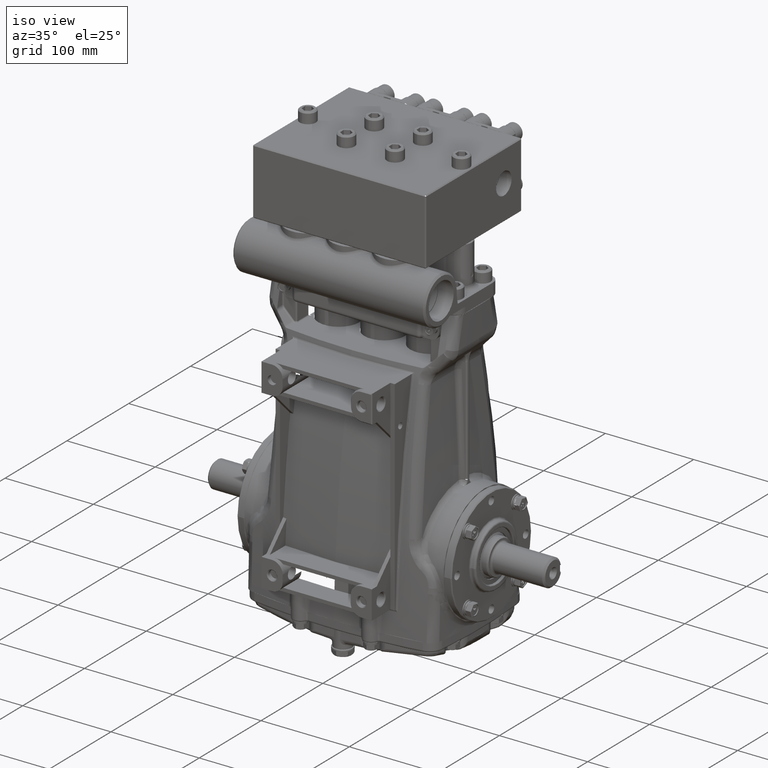
[diagram: clean part render]
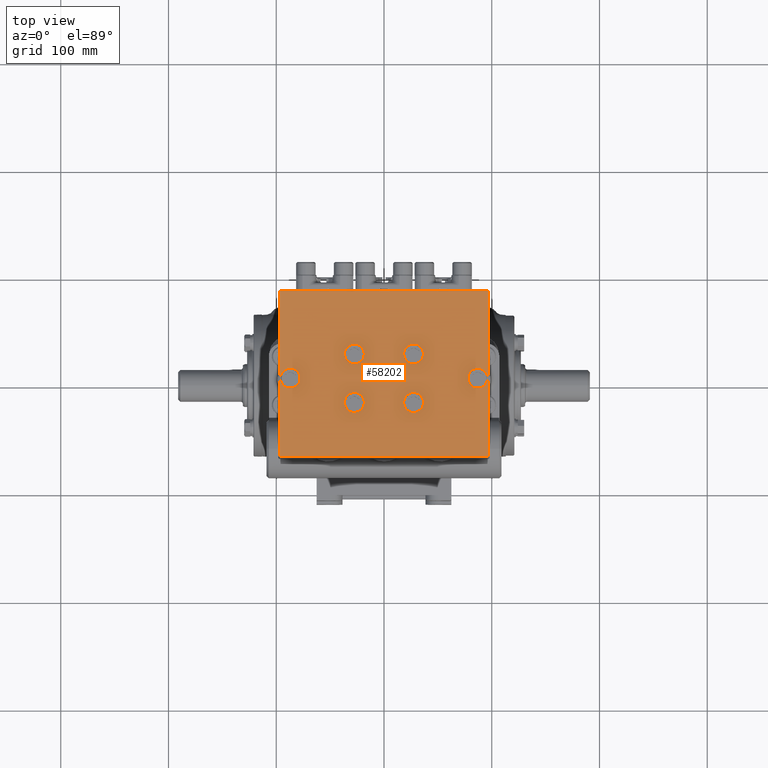
[diagram: tour spotlight — one face highlighted and labeled with its STEP entity id]
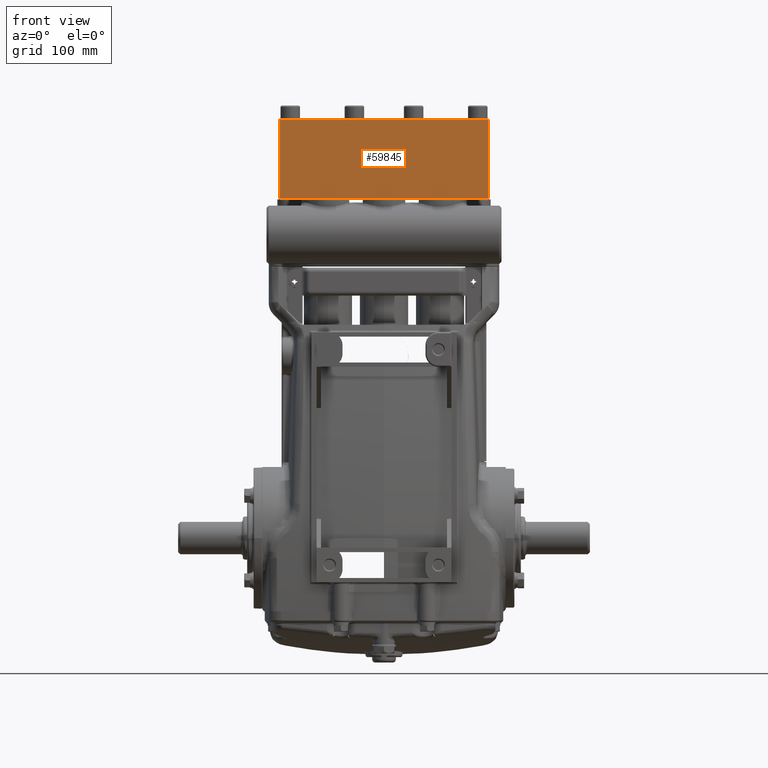
[diagram: tour spotlight — one face highlighted and labeled with its STEP entity id]
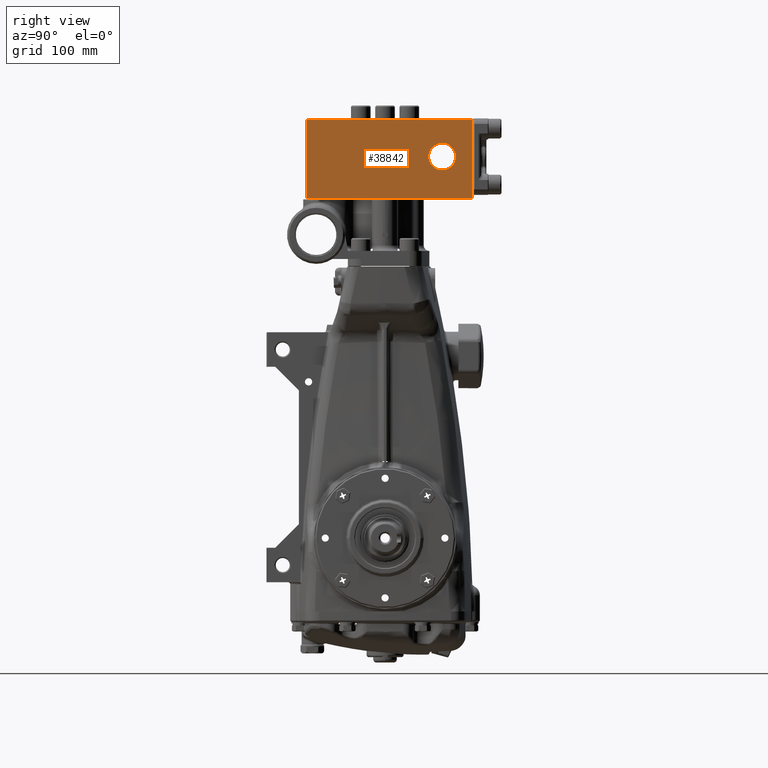
[diagram: tour spotlight — one face highlighted and labeled with its STEP entity id]
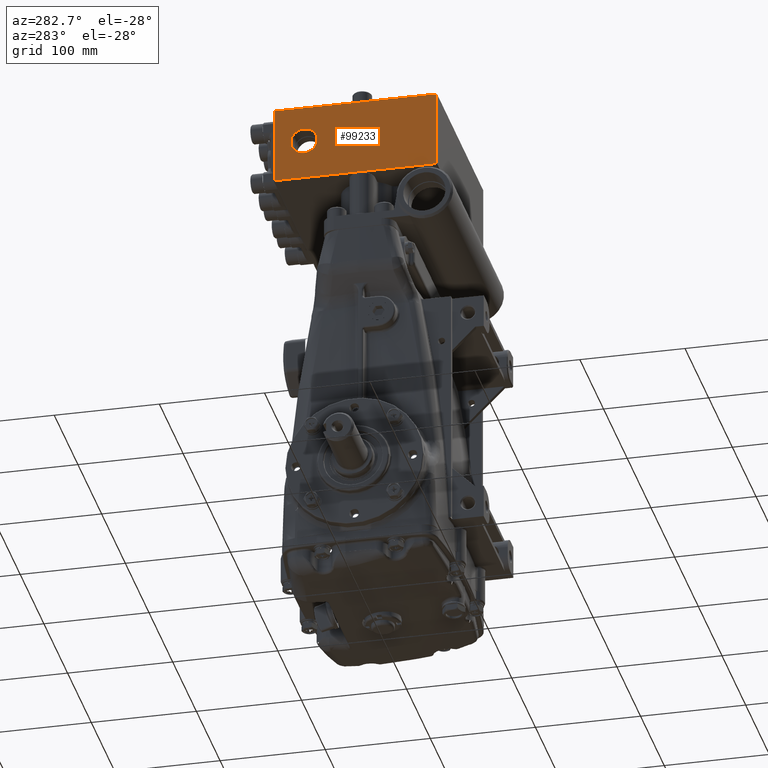
[diagram: tour spotlight — one face highlighted and labeled with its STEP entity id]
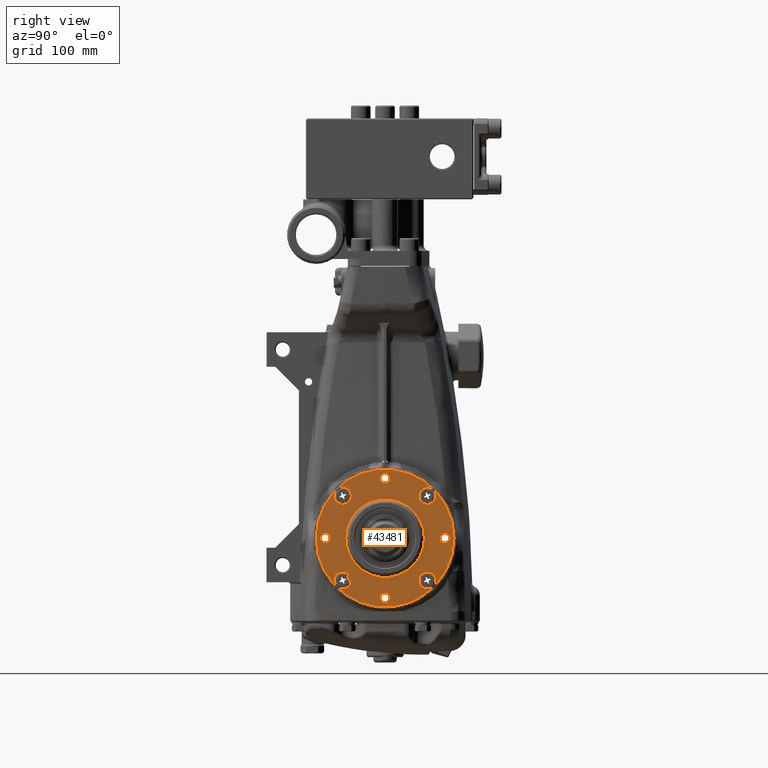
[diagram: tour spotlight — one face highlighted and labeled with its STEP entity id]
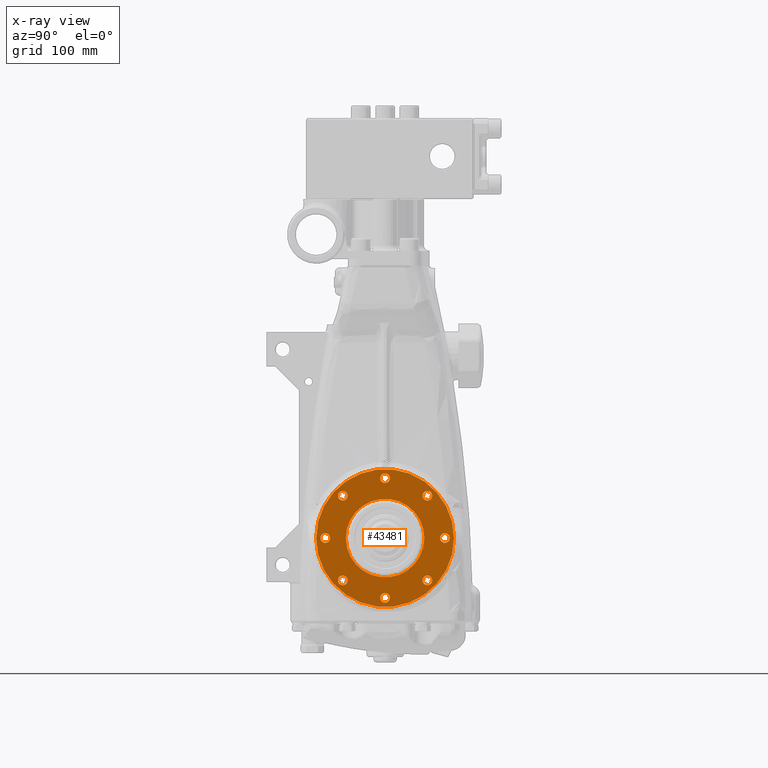
[diagram: x-ray of the same camera — body ghosted, this tour face saturated]
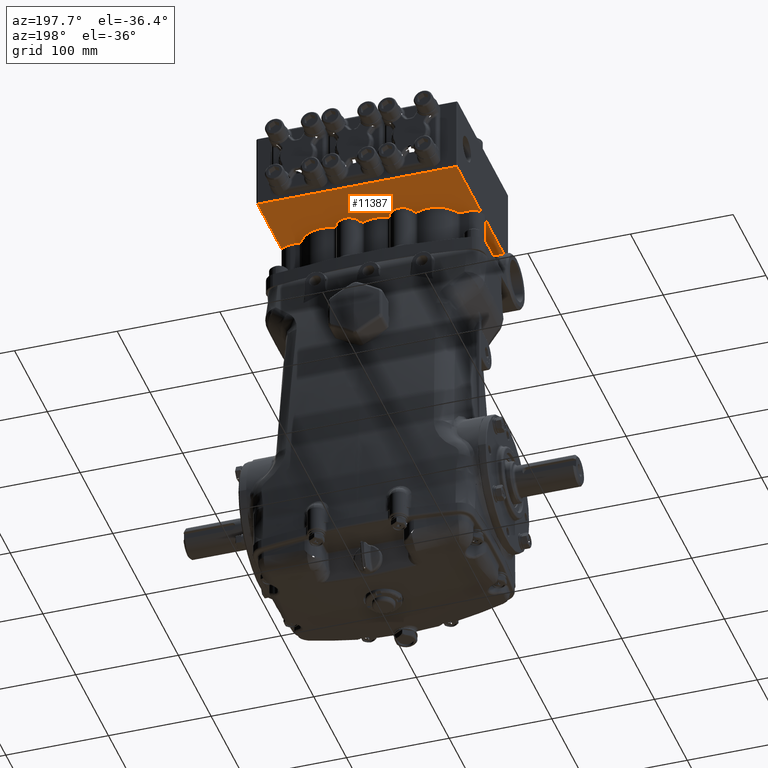
[diagram: tour spotlight — one face highlighted and labeled with its STEP entity id]
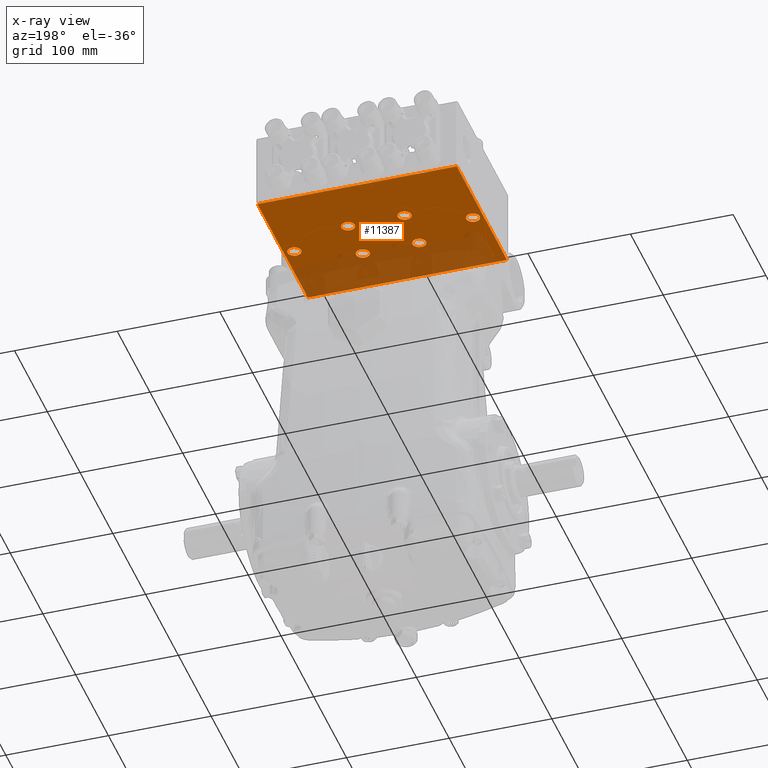
[diagram: x-ray of the same camera — body ghosted, this tour face saturated]
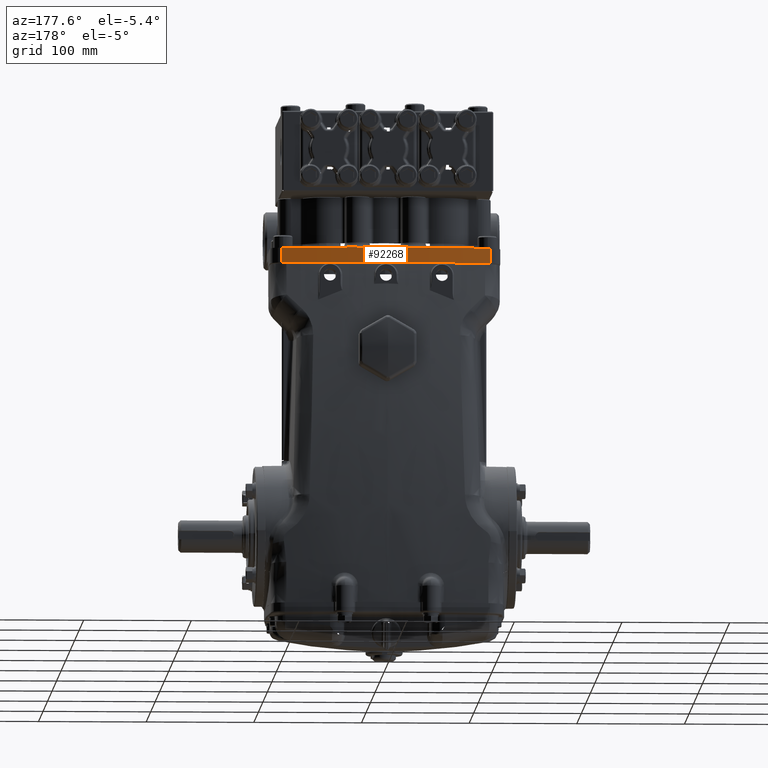
[diagram: tour spotlight — one face highlighted and labeled with its STEP entity id]
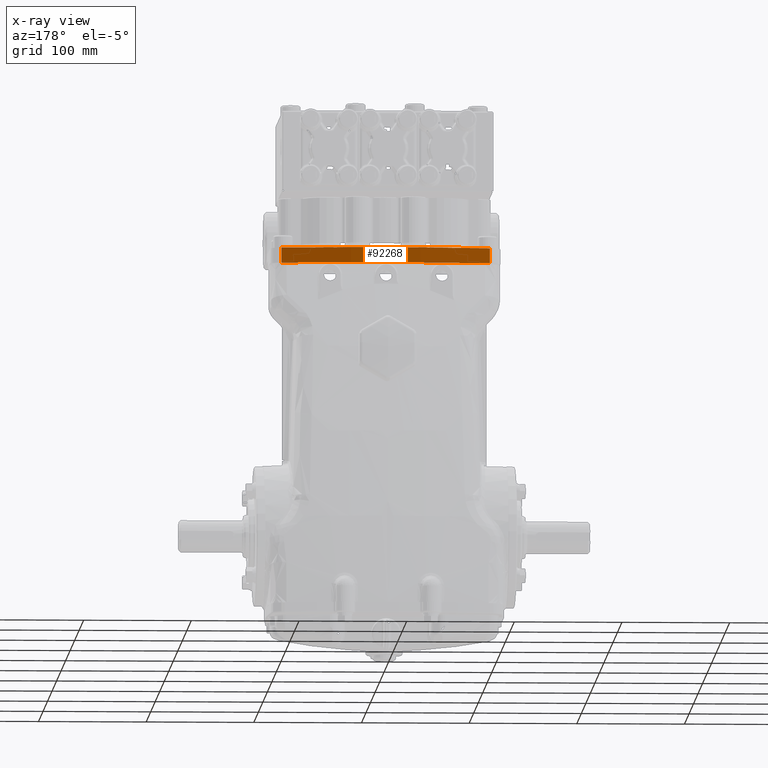
[diagram: x-ray of the same camera — body ghosted, this tour face saturated]
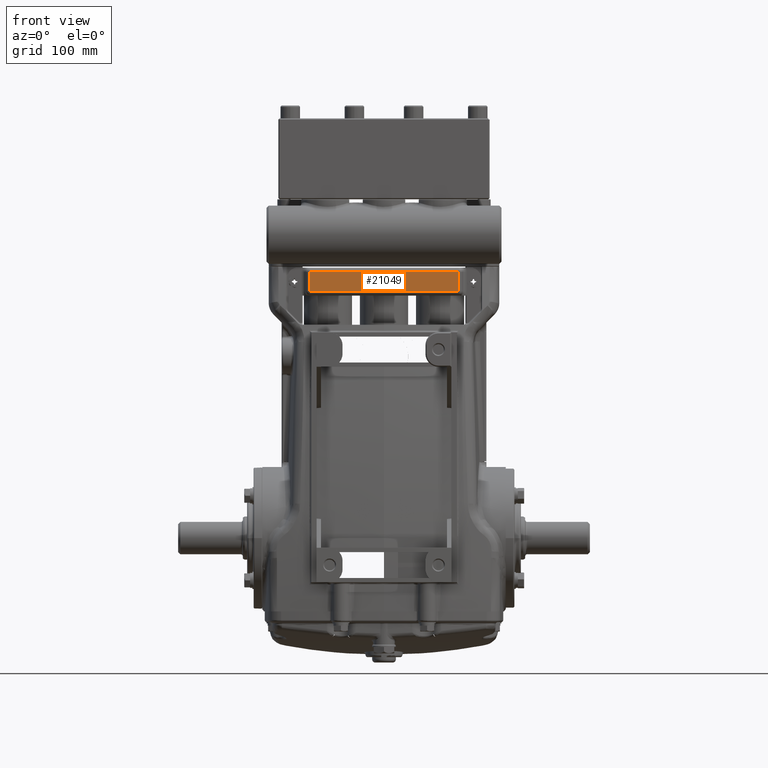
[diagram: tour spotlight — one face highlighted and labeled with its STEP entity id]
A machine part: a face-by-face anatomy tour. The part has 2277 B-rep faces; the first image is the clean iso view, then the 8 largest visible faces are spotlighted one at a time (largest first), each with its STEP entity span.

Face 1 — top view, entity #58202. In plain terms, the highlighted planar face has unit normal (-0, 0, 1).
Definition (entity closure, byte-faithful):
#139 = DIRECTION ( 'NONE',  ( 1.000000000000000000, 0.000000000000000000, 0.000000000000000000 ) ) ;
#1419 = LINE ( 'NONE', #82244, #26681 ) ;
#1615 = CIRCLE ( 'NONE', #73516, 0.2598425196850392971 ) ;
#1623 = LINE ( 'NONE', #47330, #23898 ) ;
#1800 = AXIS2_PLACEMENT_3D ( 'NONE', #44895, #28638, #54299 ) ;
#2908 = ORIENTED_EDGE ( 'NONE', *, *, #43424, .T. ) ;
#4371 = FACE_BOUND ( 'NONE', #100805, .T. ) ;
#4813 = CARTESIAN_POINT ( 'NONE',  ( -1.082677165354330562, 0.8858267716535432879, 15.33464566929134243 ) ) ;
#4885 = FACE_BOUND ( 'NONE', #67879, .T. ) ;
#5250 = VERTEX_POINT ( 'NONE', #57150 ) ;
#6446 = EDGE_CURVE ( 'NONE', #91777, #78684, #13775, .T. ) ;
#7848 = DIRECTION ( 'NONE',  ( -0.000000000000000000, -0.000000000000000000, -1.000000000000000000 ) ) ;
#9343 = CARTESIAN_POINT ( 'NONE',  ( 3.685039370078739385, 3.182153100146662956E-17, 15.33464566929134243 ) ) ;
#11368 = DIRECTION ( 'NONE',  ( -1.000000000000000000, 0.000000000000000000, 0.000000000000000000 ) ) ;
#11650 = DIRECTION ( 'NONE',  ( 0.000000000000000000, 0.000000000000000000, 1.000000000000000000 ) ) ;
#12682 = AXIS2_PLACEMENT_3D ( 'NONE', #53932, #38226, #70222 ) ;
#12729 = ORIENTED_EDGE ( 'NONE', *, *, #70960, .T. ) ;
#13291 = DIRECTION ( 'NONE',  ( 1.000000000000000000, 0.000000000000000000, 0.000000000000000000 ) ) ;
#13775 = CIRCLE ( 'NONE', #77505, 0.2598425196850391861 ) ;
#14424 = ORIENTED_EDGE ( 'NONE', *, *, #25830, .F. ) ;
#14455 = CARTESIAN_POINT ( 'NONE',  ( -1.342519685039369692, -0.8858267716535432879, 15.33464566929134243 ) ) ;
#15975 = EDGE_LOOP ( 'NONE', ( #90085, #12729 ) ) ;
#16829 = LINE ( 'NONE', #82421, #88973 ) ;
#18306 = LINE ( 'NONE', #82357, #97839 ) ;
#18553 = EDGE_CURVE ( 'NONE', #78684, #91777, #50371, .T. ) ;
#18565 = ORIENTED_EDGE ( 'NONE', *, *, #20362, .T. ) ;
#19947 = CIRCLE ( 'NONE', #60111, 0.2598425196850391861 ) ;
#20135 = FACE_BOUND ( 'NONE', #73351, .T. ) ;
#20362 = EDGE_CURVE ( 'NONE', #34952, #44673, #80299, .T. ) ;
#21515 = CIRCLE ( 'NONE', #75183, 0.2598425196850392971 ) ;
#21980 = CARTESIAN_POINT ( 'NONE',  ( 3.425196850393700032, 0.000000000000000000, 15.33464566929134243 ) ) ;
#23249 = ORIENTED_EDGE ( 'NONE', *, *, #55688, .F. ) ;
#23474 = ORIENTED_EDGE ( 'NONE', *, *, #48679, .T. ) ;
#23526 = CARTESIAN_POINT ( 'NONE',  ( 1.342519685039369692, 0.8858267716535432879, 15.33464566929134243 ) ) ;
#23898 = VECTOR ( 'NONE', #97177, 39.37007874015748143 ) ;
#23996 = ORIENTED_EDGE ( 'NONE', *, *, #75393, .T. ) ;
#24247 = ORIENTED_EDGE ( 'NONE', *, *, #18553, .T. ) ;
#24665 = ORIENTED_EDGE ( 'NONE', *, *, #39258, .F. ) ;
#25404 = AXIS2_PLACEMENT_3D ( 'NONE', #96223, #95690, #139 ) ;
#25830 = EDGE_CURVE ( 'NONE', #91915, #70336, #26996, .T. ) ;
#26114 = DIRECTION ( 'NONE',  ( -0.000000000000000000, -0.000000000000000000, -1.000000000000000000 ) ) ;
#26681 = VECTOR ( 'NONE', #59115, 39.37007874015748143 ) ;
#26996 = CIRCLE ( 'NONE', #1800, 0.2598425196850392971 ) ;
#27430 = CARTESIAN_POINT ( 'NONE',  ( -3.818897637795275912, 3.188976377952755126, 15.33464566929134243 ) ) ;
#28043 = FACE_BOUND ( 'NONE', #30209, .T. ) ;
#28380 = DIRECTION ( 'NONE',  ( -0.000000000000000000, -0.000000000000000000, -1.000000000000000000 ) ) ;
#28638 = DIRECTION ( 'NONE',  ( 0.000000000000000000, 0.000000000000000000, 1.000000000000000000 ) ) ;
#29349 = CARTESIAN_POINT ( 'NONE',  ( -0.8228346456692912092, 0.8858267716535432879, 15.33464566929134243 ) ) ;
#29610 = PLANE ( 'NONE',  #97761 ) ;
#30209 = EDGE_LOOP ( 'NONE', ( #24665, #60798 ) ) ;
#31944 = DIRECTION ( 'NONE',  ( -0.000000000000000000, -0.000000000000000000, -1.000000000000000000 ) ) ;
#32957 = ORIENTED_EDGE ( 'NONE', *, *, #51274, .F. ) ;
#34095 = VERTEX_POINT ( 'NONE', #55489 ) ;
#34952 = VERTEX_POINT ( 'NONE', #23526 ) ;
#36471 = VERTEX_POINT ( 'NONE', #53206 ) ;
#36609 = DIRECTION ( 'NONE',  ( 1.000000000000000000, 0.000000000000000000, 0.000000000000000000 ) ) ;
#36732 = AXIS2_PLACEMENT_3D ( 'NONE', #55304, #78439, #94687 ) ;
#37951 = VERTEX_POINT ( 'NONE', #27430 ) ;
#38226 = DIRECTION ( 'NONE',  ( 0.000000000000000000, 0.000000000000000000, 1.000000000000000000 ) ) ;
#39258 = EDGE_CURVE ( 'NONE', #69758, #5250, #1615, .T. ) ;
#39910 = DIRECTION ( 'NONE',  ( -1.000000000000000000, 0.000000000000000000, 0.000000000000000000 ) ) ;
#40854 = EDGE_CURVE ( 'NONE', #44673, #34952, #60084, .T. ) ;
#41885 = DIRECTION ( 'NONE',  ( -0.000000000000000000, -0.000000000000000000, -1.000000000000000000 ) ) ;
#41934 = EDGE_CURVE ( 'NONE', #5250, #69758, #63544, .T. ) ;
#42910 = CARTESIAN_POINT ( 'NONE',  ( 1.082677165354330562, -0.8858267716535432879, 15.33464566929134243 ) ) ;
#43424 = EDGE_CURVE ( 'NONE', #36471, #86991, #1419, .T. ) ;
#43941 = DIRECTION ( 'NONE',  ( 0.000000000000000000, 0.000000000000000000, 1.000000000000000000 ) ) ;
#44673 = VERTEX_POINT ( 'NONE', #88452 ) ;
#44895 = CARTESIAN_POINT ( 'NONE',  ( -1.082677165354330562, -0.8858267716535432879, 15.33464566929134243 ) ) ;
#45505 = CARTESIAN_POINT ( 'NONE',  ( -3.425196850393700032, 0.000000000000000000, 15.33464566929134243 ) ) ;
#46151 = EDGE_LOOP ( 'NONE', ( #24247, #74941 ) ) ;
#47330 = CARTESIAN_POINT ( 'NONE',  ( -3.818897637795275912, -2.893700787401575880, 15.33464566929134243 ) ) ;
#48250 = ORIENTED_EDGE ( 'NONE', *, *, #102410, .F. ) ;
#48679 = EDGE_CURVE ( 'NONE', #37951, #36471, #1623, .T. ) ;
#49306 = DIRECTION ( 'NONE',  ( 0.000000000000000000, -1.000000000000000000, 0.000000000000000000 ) ) ;
#49424 = CARTESIAN_POINT ( 'NONE',  ( 3.818897637795275912, -2.854330708661418470, 15.33464566929134243 ) ) ;
#50371 = CIRCLE ( 'NONE', #78932, 0.2598425196850391861 ) ;
#51274 = EDGE_CURVE ( 'NONE', #72287, #86991, #18306, .T. ) ;
#52678 = FACE_BOUND ( 'NONE', #46151, .T. ) ;
#53194 = CARTESIAN_POINT ( 'NONE',  ( -3.858267716535433323, 3.228346456692912536, 15.33464566929134243 ) ) ;
#53206 = CARTESIAN_POINT ( 'NONE',  ( -3.818897637795275912, -2.854330708661418470, 15.33464566929134243 ) ) ;
#53932 = CARTESIAN_POINT ( 'NONE',  ( -1.082677165354330562, -0.8858267716535432879, 15.33464566929134243 ) ) ;
#54149 = EDGE_CURVE ( 'NONE', #70336, #91915, #81437, .T. ) ;
#54299 = DIRECTION ( 'NONE',  ( 1.000000000000000000, 0.000000000000000000, 0.000000000000000000 ) ) ;
#55018 = EDGE_LOOP ( 'NONE', ( #23474, #2908, #32957, #23996 ) ) ;
#55304 = CARTESIAN_POINT ( 'NONE',  ( -1.082677165354330562, 0.8858267716535432879, 15.33464566929134243 ) ) ;
#55489 = CARTESIAN_POINT ( 'NONE',  ( -3.685039370078739385, 3.182153100146662956E-17, 15.33464566929134243 ) ) ;
#55688 = EDGE_CURVE ( 'NONE', #95344, #34095, #87406, .T. ) ;
#57150 = CARTESIAN_POINT ( 'NONE',  ( -1.342519685039369692, 0.8858267716535432879, 15.33464566929134243 ) ) ;
#57685 = VERTEX_POINT ( 'NONE', #76057 ) ;
#58202 = ADVANCED_FACE ( 'NONE', ( #28043, #20135, #4885, #60032, #4371, #60557, #52678 ), #29610, .T. ) ;
#59115 = DIRECTION ( 'NONE',  ( 1.000000000000000000, 0.000000000000000000, 0.000000000000000000 ) ) ;
#59697 = CARTESIAN_POINT ( 'NONE',  ( 3.818897637795275912, 3.188976377952755126, 15.33464566929134243 ) ) ;
#59860 = CARTESIAN_POINT ( 'NONE',  ( 1.082677165354330562, 0.8858267716535432879, 15.33464566929134243 ) ) ;
#60032 = FACE_OUTER_BOUND ( 'NONE', #55018, .T. ) ;
#60084 = CIRCLE ( 'NONE', #71810, 0.2598425196850392971 ) ;
#60111 = AXIS2_PLACEMENT_3D ( 'NONE', #45505, #43941, #36609 ) ;
#60362 = DIRECTION ( 'NONE',  ( -1.000000000000000000, 0.000000000000000000, 0.000000000000000000 ) ) ;
#60371 = DIRECTION ( 'NONE',  ( -0.000000000000000000, -0.000000000000000000, -1.000000000000000000 ) ) ;
#60557 = FACE_BOUND ( 'NONE', #15975, .T. ) ;
#60798 = ORIENTED_EDGE ( 'NONE', *, *, #41934, .F. ) ;
#63544 = CIRCLE ( 'NONE', #36732, 0.2598425196850392971 ) ;
#63577 = CARTESIAN_POINT ( 'NONE',  ( -3.165354330708661124, 0.000000000000000000, 15.33464566929134243 ) ) ;
#65010 = AXIS2_PLACEMENT_3D ( 'NONE', #42910, #41885, #11368 ) ;
#65556 = VERTEX_POINT ( 'NONE', #82302 ) ;
#67879 = EDGE_LOOP ( 'NONE', ( #23249, #48250 ) ) ;
#68176 = EDGE_CURVE ( 'NONE', #57685, #65556, #21515, .T. ) ;
#69758 = VERTEX_POINT ( 'NONE', #29349 ) ;
#70222 = DIRECTION ( 'NONE',  ( 1.000000000000000000, 0.000000000000000000, 0.000000000000000000 ) ) ;
#70336 = VERTEX_POINT ( 'NONE', #14455 ) ;
#70960 = EDGE_CURVE ( 'NONE', #65556, #57685, #85139, .T. ) ;
#71810 = AXIS2_PLACEMENT_3D ( 'NONE', #100243, #28380, #60362 ) ;
#72287 = VERTEX_POINT ( 'NONE', #59697 ) ;
#72727 = CARTESIAN_POINT ( 'NONE',  ( 3.165354330708661124, 0.000000000000000000, 15.33464566929134243 ) ) ;
#73351 = EDGE_LOOP ( 'NONE', ( #14424, #83011 ) ) ;
#73516 = AXIS2_PLACEMENT_3D ( 'NONE', #4813, #11650, #77283 ) ;
#74941 = ORIENTED_EDGE ( 'NONE', *, *, #6446, .T. ) ;
#75183 = AXIS2_PLACEMENT_3D ( 'NONE', #82764, #26114, #97492 ) ;
#75393 = EDGE_CURVE ( 'NONE', #72287, #37951, #16829, .T. ) ;
#76057 = CARTESIAN_POINT ( 'NONE',  ( 0.8228346456692912092, -0.8858267716535432879, 15.33464566929134243 ) ) ;
#77283 = DIRECTION ( 'NONE',  ( 1.000000000000000000, 0.000000000000000000, 0.000000000000000000 ) ) ;
#77505 = AXIS2_PLACEMENT_3D ( 'NONE', #21980, #31944, #94920 ) ;
#78439 = DIRECTION ( 'NONE',  ( 0.000000000000000000, 0.000000000000000000, 1.000000000000000000 ) ) ;
#78684 = VERTEX_POINT ( 'NONE', #72727 ) ;
#78932 = AXIS2_PLACEMENT_3D ( 'NONE', #79794, #7848, #39910 ) ;
#79794 = CARTESIAN_POINT ( 'NONE',  ( 3.425196850393700032, 0.000000000000000000, 15.33464566929134243 ) ) ;
#80299 = CIRCLE ( 'NONE', #103703, 0.2598425196850392971 ) ;
#81437 = CIRCLE ( 'NONE', #12682, 0.2598425196850392971 ) ;
#81917 = DIRECTION ( 'NONE',  ( -1.000000000000000000, -0.000000000000000000, 0.000000000000000000 ) ) ;
#82056 = CARTESIAN_POINT ( 'NONE',  ( -0.8228346456692912092, -0.8858267716535432879, 15.33464566929134243 ) ) ;
#82244 = CARTESIAN_POINT ( 'NONE',  ( -3.858267716535433323, -2.854330708661418470, 15.33464566929134243 ) ) ;
#82302 = CARTESIAN_POINT ( 'NONE',  ( 1.342519685039369692, -0.8858267716535432879, 15.33464566929134243 ) ) ;
#82357 = CARTESIAN_POINT ( 'NONE',  ( 3.818897637795275912, -2.893700787401575880, 15.33464566929134243 ) ) ;
#82421 = CARTESIAN_POINT ( 'NONE',  ( -3.858267716535433323, 3.188976377952755126, 15.33464566929134243 ) ) ;
#82764 = CARTESIAN_POINT ( 'NONE',  ( 1.082677165354330562, -0.8858267716535432879, 15.33464566929134243 ) ) ;
#83011 = ORIENTED_EDGE ( 'NONE', *, *, #54149, .F. ) ;
#85139 = CIRCLE ( 'NONE', #65010, 0.2598425196850392971 ) ;
#85210 = DIRECTION ( 'NONE',  ( -0.000000000000000000, 0.000000000000000000, 1.000000000000000000 ) ) ;
#86991 = VERTEX_POINT ( 'NONE', #49424 ) ;
#87406 = CIRCLE ( 'NONE', #25404, 0.2598425196850391861 ) ;
#88452 = CARTESIAN_POINT ( 'NONE',  ( 0.8228346456692912092, 0.8858267716535432879, 15.33464566929134243 ) ) ;
#88973 = VECTOR ( 'NONE', #81917, 39.37007874015748143 ) ;
#90085 = ORIENTED_EDGE ( 'NONE', *, *, #68176, .T. ) ;
#90211 = ORIENTED_EDGE ( 'NONE', *, *, #40854, .T. ) ;
#91777 = VERTEX_POINT ( 'NONE', #9343 ) ;
#91915 = VERTEX_POINT ( 'NONE', #82056 ) ;
#92386 = DIRECTION ( 'NONE',  ( -1.000000000000000000, 0.000000000000000000, 0.000000000000000000 ) ) ;
#94687 = DIRECTION ( 'NONE',  ( 1.000000000000000000, 0.000000000000000000, 0.000000000000000000 ) ) ;
#94920 = DIRECTION ( 'NONE',  ( -1.000000000000000000, 0.000000000000000000, 0.000000000000000000 ) ) ;
#95344 = VERTEX_POINT ( 'NONE', #63577 ) ;
#95690 = DIRECTION ( 'NONE',  ( 0.000000000000000000, 0.000000000000000000, 1.000000000000000000 ) ) ;
#96223 = CARTESIAN_POINT ( 'NONE',  ( -3.425196850393700032, 0.000000000000000000, 15.33464566929134243 ) ) ;
#97177 = DIRECTION ( 'NONE',  ( 0.000000000000000000, -1.000000000000000000, 0.000000000000000000 ) ) ;
#97492 = DIRECTION ( 'NONE',  ( -1.000000000000000000, 0.000000000000000000, 0.000000000000000000 ) ) ;
#97761 = AXIS2_PLACEMENT_3D ( 'NONE', #53194, #85210, #13291 ) ;
#97839 = VECTOR ( 'NONE', #49306, 39.37007874015748143 ) ;
#100243 = CARTESIAN_POINT ( 'NONE',  ( 1.082677165354330562, 0.8858267716535432879, 15.33464566929134243 ) ) ;
#100805 = EDGE_LOOP ( 'NONE', ( #90211, #18565 ) ) ;
#102410 = EDGE_CURVE ( 'NONE', #34095, #95344, #19947, .T. ) ;
#103703 = AXIS2_PLACEMENT_3D ( 'NONE', #59860, #60371, #92386 ) ;

Face 2 — front view, entity #59845. In plain terms, the highlighted planar face has unit normal (0, -1, -0).
Definition (entity closure, byte-faithful):
#718 = DIRECTION ( 'NONE',  ( 0.000000000000000000, 1.850371707708594563E-16, -1.000000000000000000 ) ) ;
#11417 = EDGE_CURVE ( 'NONE', #71642, #16275, #83924, .T. ) ;
#11989 = CARTESIAN_POINT ( 'NONE',  ( -3.858267716535433323, -2.893700787401575880, 15.29527559055118502 ) ) ;
#12191 = ORIENTED_EDGE ( 'NONE', *, *, #51849, .T. ) ;
#13908 = LINE ( 'NONE', #31248, #19068 ) ;
#16275 = VERTEX_POINT ( 'NONE', #49416 ) ;
#16982 = CARTESIAN_POINT ( 'NONE',  ( -3.858267716535433323, -2.893700787401575880, 15.33464566929134243 ) ) ;
#19068 = VECTOR ( 'NONE', #101564, 39.37007874015748143 ) ;
#20788 = VERTEX_POINT ( 'NONE', #73354 ) ;
#22262 = CARTESIAN_POINT ( 'NONE',  ( 3.818897637795275912, -2.893700787401575880, 15.29527559055118502 ) ) ;
#22636 = VECTOR ( 'NONE', #44042, 39.37007874015748143 ) ;
#23279 = EDGE_CURVE ( 'NONE', #16275, #20788, #36320, .T. ) ;
#30079 = VERTEX_POINT ( 'NONE', #74431 ) ;
#30688 = AXIS2_PLACEMENT_3D ( 'NONE', #16982, #49000, #718 ) ;
#31248 = CARTESIAN_POINT ( 'NONE',  ( -3.858267716535433323, -2.893700787401575436, 12.42125984251968696 ) ) ;
#36320 = LINE ( 'NONE', #101342, #103632 ) ;
#39734 = VECTOR ( 'NONE', #96785, 39.37007874015748143 ) ;
#44042 = DIRECTION ( 'NONE',  ( -1.000000000000000000, 0.000000000000000000, 0.000000000000000000 ) ) ;
#48490 = CARTESIAN_POINT ( 'NONE',  ( 3.818897637795275912, -2.893700787401575436, 12.38188976377952955 ) ) ;
#49000 = DIRECTION ( 'NONE',  ( 0.000000000000000000, -1.000000000000000000, -1.850371707708594563E-16 ) ) ;
#49416 = CARTESIAN_POINT ( 'NONE',  ( -3.818897637795275912, -2.893700787401575880, 15.29527559055118502 ) ) ;
#51849 = EDGE_CURVE ( 'NONE', #20788, #30079, #13908, .T. ) ;
#54101 = EDGE_LOOP ( 'NONE', ( #90681, #12191, #64258, #77707 ) ) ;
#55305 = PLANE ( 'NONE',  #30688 ) ;
#59845 = ADVANCED_FACE ( 'NONE', ( #103575 ), #55305, .T. ) ;
#61474 = DIRECTION ( 'NONE',  ( -0.000000000000000000, 1.850371707708594563E-16, -1.000000000000000000 ) ) ;
#64258 = ORIENTED_EDGE ( 'NONE', *, *, #97272, .F. ) ;
#71642 = VERTEX_POINT ( 'NONE', #22262 ) ;
#73354 = CARTESIAN_POINT ( 'NONE',  ( -3.818897637795275912, -2.893700787401575436, 12.42125984251968696 ) ) ;
#74431 = CARTESIAN_POINT ( 'NONE',  ( 3.818897637795275912, -2.893700787401575436, 12.42125984251968696 ) ) ;
#77707 = ORIENTED_EDGE ( 'NONE', *, *, #11417, .T. ) ;
#83924 = LINE ( 'NONE', #11989, #22636 ) ;
#90681 = ORIENTED_EDGE ( 'NONE', *, *, #23279, .T. ) ;
#96785 = DIRECTION ( 'NONE',  ( 0.000000000000000000, 1.850371707708594563E-16, -1.000000000000000000 ) ) ;
#97272 = EDGE_CURVE ( 'NONE', #71642, #30079, #103572, .T. ) ;
#101342 = CARTESIAN_POINT ( 'NONE',  ( -3.818897637795275912, -2.893700787401575436, 12.38188976377952955 ) ) ;
#101564 = DIRECTION ( 'NONE',  ( 1.000000000000000000, 0.000000000000000000, 0.000000000000000000 ) ) ;
#103572 = LINE ( 'NONE', #48490, #39734 ) ;
#103575 = FACE_OUTER_BOUND ( 'NONE', #54101, .T. ) ;
#103632 = VECTOR ( 'NONE', #61474, 39.37007874015748143 ) ;

Face 3 — right view, entity #38842. In plain terms, the highlighted planar face has unit normal (-1, 0, 0).
Definition (entity closure, byte-faithful):
#1179 = DIRECTION ( 'NONE',  ( 0.000000000000000000, -1.850371707708594563E-16, 1.000000000000000000 ) ) ;
#4319 = DIRECTION ( 'NONE',  ( 0.000000000000000000, 0.000000000000000000, -1.000000000000000000 ) ) ;
#4382 = LINE ( 'NONE', #67936, #48586 ) ;
#6370 = AXIS2_PLACEMENT_3D ( 'NONE', #65003, #49237, #89140 ) ;
#6680 = DIRECTION ( 'NONE',  ( 0.000000000000000000, 1.000000000000000000, 0.000000000000000000 ) ) ;
#10703 = VERTEX_POINT ( 'NONE', #82259 ) ;
#11783 = DIRECTION ( 'NONE',  ( 0.000000000000000000, -1.000000000000000000, 0.000000000000000000 ) ) ;
#13642 = AXIS2_PLACEMENT_3D ( 'NONE', #83604, #52093, #4319 ) ;
#16675 = CARTESIAN_POINT ( 'NONE',  ( 3.858267716535433323, -2.854330708661417138, 12.42125984251968696 ) ) ;
#16994 = VERTEX_POINT ( 'NONE', #86725 ) ;
#17812 = VECTOR ( 'NONE', #1179, 39.37007874015748143 ) ;
#18757 = FACE_OUTER_BOUND ( 'NONE', #27129, .T. ) ;
#21951 = LINE ( 'NONE', #60813, #74154 ) ;
#23226 = ORIENTED_EDGE ( 'NONE', *, *, #48572, .F. ) ;
#23968 = ORIENTED_EDGE ( 'NONE', *, *, #78340, .F. ) ;
#26055 = ORIENTED_EDGE ( 'NONE', *, *, #34585, .F. ) ;
#27129 = EDGE_LOOP ( 'NONE', ( #23968, #26055, #40573, #63749 ) ) ;
#27453 = DIRECTION ( 'NONE',  ( 0.000000000000000000, 0.000000000000000000, -1.000000000000000000 ) ) ;
#29844 = VECTOR ( 'NONE', #11783, 39.37007874015748143 ) ;
#30078 = VERTEX_POINT ( 'NONE', #73914 ) ;
#30546 = CARTESIAN_POINT ( 'NONE',  ( 3.858267716535433323, -2.854330708661417582, 15.29527559055118502 ) ) ;
#34585 = EDGE_CURVE ( 'NONE', #34968, #97709, #74151, .T. ) ;
#34968 = VERTEX_POINT ( 'NONE', #16675 ) ;
#38842 = ADVANCED_FACE ( 'NONE', ( #18757, #73421 ), #51285, .F. ) ;
#39967 = EDGE_CURVE ( 'NONE', #30078, #34968, #43320, .T. ) ;
#40573 = ORIENTED_EDGE ( 'NONE', *, *, #39967, .F. ) ;
#43320 = LINE ( 'NONE', #99461, #29844 ) ;
#48572 = EDGE_CURVE ( 'NONE', #10703, #16994, #49061, .T. ) ;
#48586 = VECTOR ( 'NONE', #98898, 39.37007874015748143 ) ;
#49061 = CIRCLE ( 'NONE', #65870, 0.4944305000000004946 ) ;
#49237 = DIRECTION ( 'NONE',  ( -1.000000000000000000, 0.000000000000000000, 0.000000000000000000 ) ) ;
#50991 = CARTESIAN_POINT ( 'NONE',  ( 3.858267716535433323, -2.854330708661417582, 15.33464566929134243 ) ) ;
#51285 = PLANE ( 'NONE',  #6370 ) ;
#52093 = DIRECTION ( 'NONE',  ( 1.000000000000000000, -0.000000000000000000, -0.000000000000000000 ) ) ;
#52233 = CIRCLE ( 'NONE', #13642, 0.4944305000000004946 ) ;
#56931 = VERTEX_POINT ( 'NONE', #101952 ) ;
#60813 = CARTESIAN_POINT ( 'NONE',  ( 3.858267716535433323, 3.228346456692912536, 15.29527559055118502 ) ) ;
#63749 = ORIENTED_EDGE ( 'NONE', *, *, #74184, .F. ) ;
#65003 = CARTESIAN_POINT ( 'NONE',  ( 3.858267716535433323, 0.000000000000000000, 13.93700787401575170 ) ) ;
#65870 = AXIS2_PLACEMENT_3D ( 'NONE', #99844, #74210, #27453 ) ;
#67936 = CARTESIAN_POINT ( 'NONE',  ( 3.858267716535433323, 3.188976377952755570, 12.38188976377952955 ) ) ;
#73421 = FACE_BOUND ( 'NONE', #75266, .T. ) ;
#73914 = CARTESIAN_POINT ( 'NONE',  ( 3.858267716535433323, 3.188976377952755570, 12.42125984251968696 ) ) ;
#74151 = LINE ( 'NONE', #50991, #17812 ) ;
#74154 = VECTOR ( 'NONE', #6680, 39.37007874015748143 ) ;
#74184 = EDGE_CURVE ( 'NONE', #56931, #30078, #4382, .T. ) ;
#74210 = DIRECTION ( 'NONE',  ( 1.000000000000000000, -0.000000000000000000, -0.000000000000000000 ) ) ;
#75266 = EDGE_LOOP ( 'NONE', ( #82115, #23226 ) ) ;
#78340 = EDGE_CURVE ( 'NONE', #97709, #56931, #21951, .T. ) ;
#82115 = ORIENTED_EDGE ( 'NONE', *, *, #86662, .F. ) ;
#82259 = CARTESIAN_POINT ( 'NONE',  ( 3.858267716535433323, 2.086614173228346303, 14.43143837401575169 ) ) ;
#83604 = CARTESIAN_POINT ( 'NONE',  ( 3.858267716535433323, 2.086614173228346303, 13.93700787401575170 ) ) ;
#86662 = EDGE_CURVE ( 'NONE', #16994, #10703, #52233, .T. ) ;
#86725 = CARTESIAN_POINT ( 'NONE',  ( 3.858267716535433323, 2.086614173228346303, 13.44257737401575170 ) ) ;
#89140 = DIRECTION ( 'NONE',  ( 0.000000000000000000, 0.000000000000000000, -1.000000000000000000 ) ) ;
#97709 = VERTEX_POINT ( 'NONE', #30546 ) ;
#98898 = DIRECTION ( 'NONE',  ( 0.000000000000000000, 1.850371707708594563E-16, -1.000000000000000000 ) ) ;
#99461 = CARTESIAN_POINT ( 'NONE',  ( 3.858267716535433323, -2.893700787401575436, 12.42125984251968696 ) ) ;
#99844 = CARTESIAN_POINT ( 'NONE',  ( 3.858267716535433323, 2.086614173228346303, 13.93700787401575170 ) ) ;
#101952 = CARTESIAN_POINT ( 'NONE',  ( 3.858267716535433323, 3.188976377952755126, 15.29527559055118502 ) ) ;

Face 4 — auxiliary view, entity #99233. In plain terms, the highlighted planar face has unit normal (1, 0, -0).
Definition (entity closure, byte-faithful):
#336 = VERTEX_POINT ( 'NONE', #88768 ) ;
#620 = DIRECTION ( 'NONE',  ( 0.000000000000000000, 0.000000000000000000, 1.000000000000000000 ) ) ;
#1936 = EDGE_LOOP ( 'NONE', ( #51070, #52212 ) ) ;
#5022 = AXIS2_PLACEMENT_3D ( 'NONE', #15840, #88279, #620 ) ;
#5631 = CARTESIAN_POINT ( 'NONE',  ( -3.858267716535433323, 2.086614173228346303, 13.93700787401575170 ) ) ;
#6786 = CARTESIAN_POINT ( 'NONE',  ( -3.858267716535433323, -2.854330708661417582, 15.29527559055118502 ) ) ;
#6981 = VERTEX_POINT ( 'NONE', #74310 ) ;
#9675 = ORIENTED_EDGE ( 'NONE', *, *, #91095, .T. ) ;
#10244 = EDGE_CURVE ( 'NONE', #21776, #76879, #67134, .T. ) ;
#10722 = LINE ( 'NONE', #66893, #34349 ) ;
#11021 = EDGE_CURVE ( 'NONE', #336, #21776, #10722, .T. ) ;
#12317 = ORIENTED_EDGE ( 'NONE', *, *, #11021, .T. ) ;
#14208 = CARTESIAN_POINT ( 'NONE',  ( -3.858267716535433323, 3.188976377952755126, 15.29527559055118502 ) ) ;
#15760 = CARTESIAN_POINT ( 'NONE',  ( -3.858267716535433323, 2.086614173228346303, 14.43143837401575169 ) ) ;
#15840 = CARTESIAN_POINT ( 'NONE',  ( -3.858267716535433323, 2.086614173228346303, 13.93700787401575170 ) ) ;
#16818 = CIRCLE ( 'NONE', #5022, 0.4944305000000004946 ) ;
#17165 = CARTESIAN_POINT ( 'NONE',  ( -3.858267716535433323, -2.854330708661417138, 12.42125984251968696 ) ) ;
#18797 = CARTESIAN_POINT ( 'NONE',  ( -3.858267716535433323, 0.000000000000000000, 13.93700787401575170 ) ) ;
#20376 = DIRECTION ( 'NONE',  ( -1.000000000000000000, -0.000000000000000000, -0.000000000000000000 ) ) ;
#20566 = CARTESIAN_POINT ( 'NONE',  ( -3.858267716535433323, 3.188976377952755570, 12.38188976377952955 ) ) ;
#21776 = VERTEX_POINT ( 'NONE', #17165 ) ;
#22639 = DIRECTION ( 'NONE',  ( 0.000000000000000000, 1.850371707708594563E-16, -1.000000000000000000 ) ) ;
#24542 = EDGE_LOOP ( 'NONE', ( #93813, #9675, #12317, #73316 ) ) ;
#26700 = PLANE ( 'NONE',  #55056 ) ;
#28310 = VECTOR ( 'NONE', #54454, 39.37007874015748143 ) ;
#34349 = VECTOR ( 'NONE', #34890, 39.37007874015748143 ) ;
#34890 = DIRECTION ( 'NONE',  ( 0.000000000000000000, -1.000000000000000000, 0.000000000000000000 ) ) ;
#43008 = DIRECTION ( 'NONE',  ( 0.000000000000000000, -1.850371707708594563E-16, 1.000000000000000000 ) ) ;
#44027 = CARTESIAN_POINT ( 'NONE',  ( -3.858267716535433323, -2.854330708661417582, 15.33464566929134243 ) ) ;
#50610 = CIRCLE ( 'NONE', #84102, 0.4944305000000004946 ) ;
#50812 = FACE_OUTER_BOUND ( 'NONE', #24542, .T. ) ;
#51070 = ORIENTED_EDGE ( 'NONE', *, *, #99789, .F. ) ;
#52212 = ORIENTED_EDGE ( 'NONE', *, *, #56579, .F. ) ;
#54454 = DIRECTION ( 'NONE',  ( 0.000000000000000000, 1.000000000000000000, 0.000000000000000000 ) ) ;
#55056 = AXIS2_PLACEMENT_3D ( 'NONE', #18797, #58190, #59213 ) ;
#56089 = VERTEX_POINT ( 'NONE', #15760 ) ;
#56579 = EDGE_CURVE ( 'NONE', #6981, #56089, #50610, .T. ) ;
#58190 = DIRECTION ( 'NONE',  ( 1.000000000000000000, 0.000000000000000000, -0.000000000000000000 ) ) ;
#59213 = DIRECTION ( 'NONE',  ( -0.000000000000000000, 0.000000000000000000, -1.000000000000000000 ) ) ;
#60797 = DIRECTION ( 'NONE',  ( 0.000000000000000000, 0.000000000000000000, 1.000000000000000000 ) ) ;
#60984 = LINE ( 'NONE', #20566, #69343 ) ;
#63635 = VERTEX_POINT ( 'NONE', #14208 ) ;
#66893 = CARTESIAN_POINT ( 'NONE',  ( -3.858267716535433323, -2.893700787401575436, 12.42125984251968696 ) ) ;
#67134 = LINE ( 'NONE', #44027, #87912 ) ;
#67564 = CARTESIAN_POINT ( 'NONE',  ( -3.858267716535433323, 3.228346456692912536, 15.29527559055118502 ) ) ;
#69343 = VECTOR ( 'NONE', #22639, 39.37007874015748143 ) ;
#73316 = ORIENTED_EDGE ( 'NONE', *, *, #10244, .T. ) ;
#74310 = CARTESIAN_POINT ( 'NONE',  ( -3.858267716535433323, 2.086614173228346303, 13.44257737401575170 ) ) ;
#76879 = VERTEX_POINT ( 'NONE', #6786 ) ;
#83303 = LINE ( 'NONE', #67564, #28310 ) ;
#84102 = AXIS2_PLACEMENT_3D ( 'NONE', #5631, #20376, #60797 ) ;
#87912 = VECTOR ( 'NONE', #43008, 39.37007874015748143 ) ;
#88279 = DIRECTION ( 'NONE',  ( -1.000000000000000000, -0.000000000000000000, -0.000000000000000000 ) ) ;
#88768 = CARTESIAN_POINT ( 'NONE',  ( -3.858267716535433323, 3.188976377952755570, 12.42125984251968696 ) ) ;
#91095 = EDGE_CURVE ( 'NONE', #63635, #336, #60984, .T. ) ;
#93813 = ORIENTED_EDGE ( 'NONE', *, *, #100288, .T. ) ;
#98589 = FACE_BOUND ( 'NONE', #1936, .T. ) ;
#99233 = ADVANCED_FACE ( 'NONE', ( #98589, #50812 ), #26700, .F. ) ;
#99789 = EDGE_CURVE ( 'NONE', #56089, #6981, #16818, .T. ) ;
#100288 = EDGE_CURVE ( 'NONE', #76879, #63635, #83303, .T. ) ;

Face 5 — right view, entity #43481. An x-ray twin of the same camera follows (body ghosted, this face saturated) — the face is partly hidden behind the body. In plain terms, the highlighted planar face has unit normal (1, -0, -0).
Definition (entity closure, byte-faithful):
#626 = DIRECTION ( 'NONE',  ( 0.000000000000000000, -1.000000000000000000, 0.000000000000000000 ) ) ;
#1100 = CIRCLE ( 'NONE', #89973, 0.1771653543307085965 ) ;
#1494 = AXIS2_PLACEMENT_3D ( 'NONE', #19221, #51229, #11325 ) ;
#2326 = CARTESIAN_POINT ( 'NONE',  ( 4.763779527559056426, -0.1771653543307089018, 2.185039370078740717 ) ) ;
#2675 = CARTESIAN_POINT ( 'NONE',  ( 4.763779527559056426, -3.201812557543903254E-16, -2.185039370078739829 ) ) ;
#3355 = DIRECTION ( 'NONE',  ( 0.000000000000000000, -1.000000000000000000, 0.000000000000000000 ) ) ;
#4030 = AXIS2_PLACEMENT_3D ( 'NONE', #10544, #75631, #49930 ) ;
#4270 = DIRECTION ( 'NONE',  ( 1.000000000000000000, -1.224606353822377258E-16, -0.000000000000000000 ) ) ;
#5242 = CIRCLE ( 'NONE', #45520, 0.1771653543307085965 ) ;
#5257 = CARTESIAN_POINT ( 'NONE',  ( 4.763779527559056426, 2.362204724409448620, 3.414809992080329023E-16 ) ) ;
#5276 = CARTESIAN_POINT ( 'NONE',  ( 4.763779527559056426, 1.437007874015747921, 9.720209004013337265E-17 ) ) ;
#5330 = AXIS2_PLACEMENT_3D ( 'NONE', #12095, #26358, #66745 ) ;
#5402 = CARTESIAN_POINT ( 'NONE',  ( 4.763779527559056426, 0.1771653543307082912, -2.185039370078739829 ) ) ;
#6609 = ORIENTED_EDGE ( 'NONE', *, *, #71396, .T. ) ;
#6674 = CARTESIAN_POINT ( 'NONE',  ( 4.763779527559055538, -2.362204724409449064, 3.197845007979419958E-16 ) ) ;
#7073 = CIRCLE ( 'NONE', #70790, 0.1771653543307085410 ) ;
#9365 = VERTEX_POINT ( 'NONE', #9796 ) ;
#9796 = CARTESIAN_POINT ( 'NONE',  ( 4.763779527559056426, -1.367890801411554280, -1.545056155742255521 ) ) ;
#9875 = DIRECTION ( 'NONE',  ( 1.000000000000000000, -1.224606353822377258E-16, -0.000000000000000000 ) ) ;
#9919 = ORIENTED_EDGE ( 'NONE', *, *, #47604, .F. ) ;
#10026 = AXIS2_PLACEMENT_3D ( 'NONE', #32201, #79439, #78391 ) ;
#10149 = ORIENTED_EDGE ( 'NONE', *, *, #103514, .F. ) ;
#10544 = CARTESIAN_POINT ( 'NONE',  ( 4.763779527559056426, -3.128606229619096696E-16, 2.731847993664263218E-16 ) ) ;
#10753 = DIRECTION ( 'NONE',  ( 2.169251708919806436E-16, 1.000000000000000000, 0.000000000000000000 ) ) ;
#10953 = AXIS2_PLACEMENT_3D ( 'NONE', #52161, #100440, #3355 ) ;
#11027 = AXIS2_PLACEMENT_3D ( 'NONE', #66780, #27419, #18998 ) ;
#11203 = VERTEX_POINT ( 'NONE', #62631 ) ;
#11325 = DIRECTION ( 'NONE',  ( -1.224606353822377258E-16, -1.000000000000000000, 0.000000000000000000 ) ) ;
#11667 = VERTEX_POINT ( 'NONE', #56054 ) ;
#11892 = AXIS2_PLACEMENT_3D ( 'NONE', #87407, #22854, #47521 ) ;
#12095 = CARTESIAN_POINT ( 'NONE',  ( 4.763779527559056426, -3.201812557543903254E-16, 2.185039370078740717 ) ) ;
#12421 = ORIENTED_EDGE ( 'NONE', *, *, #63088, .F. ) ;
#12552 = VERTEX_POINT ( 'NONE', #53083 ) ;
#13254 = ORIENTED_EDGE ( 'NONE', *, *, #33899, .F. ) ;
#14451 = DIRECTION ( 'NONE',  ( 1.000000000000000000, -1.224606353822377258E-16, -0.000000000000000000 ) ) ;
#15011 = CIRCLE ( 'NONE', #10026, 2.518700787401574104 ) ;
#15767 = ORIENTED_EDGE ( 'NONE', *, *, #63439, .F. ) ;
#15971 = CIRCLE ( 'NONE', #76321, 0.1771653543307085410 ) ;
#17164 = FACE_BOUND ( 'NONE', #57180, .T. ) ;
#17353 = EDGE_CURVE ( 'NONE', #29681, #52007, #5242, .T. ) ;
#17920 = CARTESIAN_POINT ( 'NONE',  ( 4.763779527559056426, -3.201812557543903254E-16, 2.185039370078740717 ) ) ;
#18998 = DIRECTION ( 'NONE',  ( 0.000000000000000000, -1.000000000000000000, 0.000000000000000000 ) ) ;
#19221 = CARTESIAN_POINT ( 'NONE',  ( 4.763779527559056426, 1.358267716535432879, 2.731847993664263218E-16 ) ) ;
#19256 = AXIS2_PLACEMENT_3D ( 'NONE', #54637, #86666, #39450 ) ;
#19385 = EDGE_CURVE ( 'NONE', #25673, #57328, #30383, .T. ) ;
#20072 = EDGE_LOOP ( 'NONE', ( #90484, #6609 ) ) ;
#20422 = DIRECTION ( 'NONE',  ( 1.000000000000000000, -1.224606353822377258E-16, -0.000000000000000000 ) ) ;
#20712 = CIRCLE ( 'NONE', #37527, 0.1771653543307085410 ) ;
#22625 = CARTESIAN_POINT ( 'NONE',  ( 4.763779527559056426, -1.367890801411553614, 1.545056155742256854 ) ) ;
#22854 = DIRECTION ( 'NONE',  ( 1.000000000000000000, -1.224606353822377258E-16, -0.000000000000000000 ) ) ;
#23358 = ORIENTED_EDGE ( 'NONE', *, *, #17353, .F. ) ;
#24161 = CARTESIAN_POINT ( 'NONE',  ( 4.763779527559056426, 1.367890801411552948, 1.545056155742256854 ) ) ;
#25673 = VERTEX_POINT ( 'NONE', #67923 ) ;
#25716 = AXIS2_PLACEMENT_3D ( 'NONE', #2675, #34736, #626 ) ;
#26358 = DIRECTION ( 'NONE',  ( 1.000000000000000000, -1.224606353822377258E-16, -0.000000000000000000 ) ) ;
#27119 = PLANE ( 'NONE',  #1494 ) ;
#27419 = DIRECTION ( 'NONE',  ( 1.000000000000000000, -1.224606353822377258E-16, -0.000000000000000000 ) ) ;
#29173 = ORIENTED_EDGE ( 'NONE', *, *, #35213, .F. ) ;
#29681 = VERTEX_POINT ( 'NONE', #2326 ) ;
#29873 = CIRCLE ( 'NONE', #44980, 2.518700787401574104 ) ;
#30383 = CIRCLE ( 'NONE', #11892, 0.1771653543307085410 ) ;
#31041 = AXIS2_PLACEMENT_3D ( 'NONE', #75712, #4270, #52579 ) ;
#31181 = ORIENTED_EDGE ( 'NONE', *, *, #82337, .F. ) ;
#32201 = CARTESIAN_POINT ( 'NONE',  ( 4.763779527559056426, -1.403902198996052218E-15, 0.000000000000000000 ) ) ;
#33694 = DIRECTION ( 'NONE',  ( 0.000000000000000000, -1.000000000000000000, 0.000000000000000000 ) ) ;
#33899 = EDGE_CURVE ( 'NONE', #12552, #74439, #79791, .T. ) ;
#34567 = DIRECTION ( 'NONE',  ( 0.000000000000000000, -1.000000000000000000, 0.000000000000000000 ) ) ;
#34736 = DIRECTION ( 'NONE',  ( 1.000000000000000000, -1.224606353822377258E-16, -0.000000000000000000 ) ) ;
#34996 = FACE_BOUND ( 'NONE', #95872, .T. ) ;
#35213 = EDGE_CURVE ( 'NONE', #35604, #47882, #1100, .T. ) ;
#35516 = DIRECTION ( 'NONE',  ( 1.000000000000000000, -1.224606353822377258E-16, -0.000000000000000000 ) ) ;
#35604 = VERTEX_POINT ( 'NONE', #5402 ) ;
#36072 = CIRCLE ( 'NONE', #31041, 0.1771653543307085410 ) ;
#36621 = CARTESIAN_POINT ( 'NONE',  ( 4.763779527559055538, -2.007874015748031926, 3.414809992080329023E-16 ) ) ;
#37527 = AXIS2_PLACEMENT_3D ( 'NONE', #78442, #103067, #38566 ) ;
#38058 = CARTESIAN_POINT ( 'NONE',  ( 4.763779527559056426, 1.722221510072970085, 1.545056155742256854 ) ) ;
#38356 = DIRECTION ( 'NONE',  ( 0.000000000000000000, -1.000000000000000000, 0.000000000000000000 ) ) ;
#38566 = DIRECTION ( 'NONE',  ( 0.000000000000000000, -1.000000000000000000, 0.000000000000000000 ) ) ;
#39191 = CARTESIAN_POINT ( 'NONE',  ( 4.763779527559056426, -1.545056155742262849, -1.545056155742255521 ) ) ;
#39450 = DIRECTION ( 'NONE',  ( 0.000000000000000000, -1.000000000000000000, 0.000000000000000000 ) ) ;
#41913 = CARTESIAN_POINT ( 'NONE',  ( 4.763779527559056426, 1.545056155742260851, -1.545056155742257298 ) ) ;
#42085 = DIRECTION ( 'NONE',  ( 1.000000000000000000, -1.224606353822377258E-16, -0.000000000000000000 ) ) ;
#42297 = AXIS2_PLACEMENT_3D ( 'NONE', #58106, #35516, #74906 ) ;
#42360 = FACE_BOUND ( 'NONE', #103791, .T. ) ;
#42620 = EDGE_LOOP ( 'NONE', ( #55182, #77093 ) ) ;
#42894 = CIRCLE ( 'NONE', #11027, 0.1771653543307085410 ) ;
#43481 = ADVANCED_FACE ( 'NONE', ( #98497, #58603, #65477, #64949, #34996, #42360, #89081, #17164, #98989, #97479 ), #27119, .T. ) ;
#43825 = ORIENTED_EDGE ( 'NONE', *, *, #92952, .F. ) ;
#44107 = CIRCLE ( 'NONE', #25716, 0.1771653543307085965 ) ;
#44962 = EDGE_CURVE ( 'NONE', #11203, #103104, #15011, .T. ) ;
#44980 = AXIS2_PLACEMENT_3D ( 'NONE', #97402, #89002, #10753 ) ;
#45520 = AXIS2_PLACEMENT_3D ( 'NONE', #17920, #42085, #33694 ) ;
#45921 = CARTESIAN_POINT ( 'NONE',  ( 4.763779527559056426, 1.367890801411552282, -1.545056155742257298 ) ) ;
#46093 = CIRCLE ( 'NONE', #19256, 0.1771653543307085410 ) ;
#46494 = DIRECTION ( 'NONE',  ( 0.000000000000000000, -1.000000000000000000, 0.000000000000000000 ) ) ;
#47521 = DIRECTION ( 'NONE',  ( 0.000000000000000000, -1.000000000000000000, 0.000000000000000000 ) ) ;
#47604 = EDGE_CURVE ( 'NONE', #11667, #9365, #7073, .T. ) ;
#47882 = VERTEX_POINT ( 'NONE', #94022 ) ;
#48408 = ORIENTED_EDGE ( 'NONE', *, *, #51072, .F. ) ;
#49034 = CARTESIAN_POINT ( 'NONE',  ( 4.763779527559056426, -1.437007874015748587, 2.731847993664263218E-16 ) ) ;
#49930 = DIRECTION ( 'NONE',  ( 0.000000000000000000, -1.000000000000000000, 0.000000000000000000 ) ) ;
#50372 = AXIS2_PLACEMENT_3D ( 'NONE', #50378, #20422, #84453 ) ;
#50378 = CARTESIAN_POINT ( 'NONE',  ( 4.763779527559056426, 1.545056155742261517, 1.545056155742256854 ) ) ;
#51072 = EDGE_CURVE ( 'NONE', #47882, #35604, #44107, .T. ) ;
#51229 = DIRECTION ( 'NONE',  ( 1.000000000000000000, -1.224606353822377258E-16, -0.000000000000000000 ) ) ;
#52007 = VERTEX_POINT ( 'NONE', #96325 ) ;
#52161 = CARTESIAN_POINT ( 'NONE',  ( 4.763779527559055538, -2.185039370078740717, 3.414809992080329023E-16 ) ) ;
#52579 = DIRECTION ( 'NONE',  ( 0.000000000000000000, -1.000000000000000000, 0.000000000000000000 ) ) ;
#53083 = CARTESIAN_POINT ( 'NONE',  ( 4.763779527559056426, -1.722221510072970752, 1.545056155742256854 ) ) ;
#54325 = CIRCLE ( 'NONE', #4030, 1.437007874015748365 ) ;
#54637 = CARTESIAN_POINT ( 'NONE',  ( 4.763779527559055538, -2.185039370078740717, 3.414809992080329023E-16 ) ) ;
#55182 = ORIENTED_EDGE ( 'NONE', *, *, #89068, .F. ) ;
#55233 = AXIS2_PLACEMENT_3D ( 'NONE', #74470, #9875, #34567 ) ;
#56054 = CARTESIAN_POINT ( 'NONE',  ( 4.763779527559056426, -1.722221510072971418, -1.545056155742255521 ) ) ;
#57180 = EDGE_LOOP ( 'NONE', ( #12421, #31181 ) ) ;
#57209 = EDGE_CURVE ( 'NONE', #52007, #29681, #64117, .T. ) ;
#57328 = VERTEX_POINT ( 'NONE', #5257 ) ;
#57792 = CARTESIAN_POINT ( 'NONE',  ( 4.763779527559056426, -3.128606229619096696E-16, 2.731847993664263218E-16 ) ) ;
#57884 = CIRCLE ( 'NONE', #10953, 0.1771653543307085410 ) ;
#58106 = CARTESIAN_POINT ( 'NONE',  ( 4.763779527559056426, 1.545056155742260851, -1.545056155742257298 ) ) ;
#58603 = FACE_BOUND ( 'NONE', #96514, .T. ) ;
#61294 = EDGE_CURVE ( 'NONE', #73454, #62183, #54325, .T. ) ;
#61787 = EDGE_LOOP ( 'NONE', ( #43825, #102364 ) ) ;
#62149 = CIRCLE ( 'NONE', #50372, 0.1771653543307085410 ) ;
#62183 = VERTEX_POINT ( 'NONE', #49034 ) ;
#62631 = CARTESIAN_POINT ( 'NONE',  ( 4.763779527559055538, -2.518700787401575436, 0.000000000000000000 ) ) ;
#63088 = EDGE_CURVE ( 'NONE', #72295, #84582, #57884, .T. ) ;
#63439 = EDGE_CURVE ( 'NONE', #9365, #11667, #42894, .T. ) ;
#63648 = CIRCLE ( 'NONE', #55233, 0.1771653543307085410 ) ;
#64112 = DIRECTION ( 'NONE',  ( 0.000000000000000000, -1.000000000000000000, 0.000000000000000000 ) ) ;
#64117 = CIRCLE ( 'NONE', #5330, 0.1771653543307085965 ) ;
#64949 = FACE_BOUND ( 'NONE', #42620, .T. ) ;
#65149 = DIRECTION ( 'NONE',  ( -1.000000000000000000, 1.224606353822377258E-16, 0.000000000000000000 ) ) ;
#65477 = FACE_BOUND ( 'NONE', #86033, .T. ) ;
#66745 = DIRECTION ( 'NONE',  ( 0.000000000000000000, -1.000000000000000000, 0.000000000000000000 ) ) ;
#66780 = CARTESIAN_POINT ( 'NONE',  ( 4.763779527559056426, -1.545056155742262849, -1.545056155742255521 ) ) ;
#67923 = CARTESIAN_POINT ( 'NONE',  ( 4.763779527559056426, 2.007874015748031482, 3.197845007979419958E-16 ) ) ;
#68003 = VERTEX_POINT ( 'NONE', #103774 ) ;
#69211 = ORIENTED_EDGE ( 'NONE', *, *, #92355, .T. ) ;
#69495 = AXIS2_PLACEMENT_3D ( 'NONE', #57792, #65149, #64112 ) ;
#70660 = DIRECTION ( 'NONE',  ( 0.000000000000000000, -1.000000000000000000, 0.000000000000000000 ) ) ;
#70790 = AXIS2_PLACEMENT_3D ( 'NONE', #39191, #94803, #70660 ) ;
#71396 = EDGE_CURVE ( 'NONE', #103104, #11203, #29873, .T. ) ;
#71835 = VERTEX_POINT ( 'NONE', #24161 ) ;
#72295 = VERTEX_POINT ( 'NONE', #36621 ) ;
#72455 = ORIENTED_EDGE ( 'NONE', *, *, #57209, .F. ) ;
#73118 = VERTEX_POINT ( 'NONE', #45921 ) ;
#73454 = VERTEX_POINT ( 'NONE', #5276 ) ;
#73951 = DIRECTION ( 'NONE',  ( 0.000000000000000000, -1.000000000000000000, 0.000000000000000000 ) ) ;
#74439 = VERTEX_POINT ( 'NONE', #22625 ) ;
#74470 = CARTESIAN_POINT ( 'NONE',  ( 4.763779527559056426, -1.545056155742262183, 1.545056155742256854 ) ) ;
#74709 = EDGE_CURVE ( 'NONE', #93373, #71835, #62149, .T. ) ;
#74906 = DIRECTION ( 'NONE',  ( 0.000000000000000000, -1.000000000000000000, 0.000000000000000000 ) ) ;
#75631 = DIRECTION ( 'NONE',  ( -1.000000000000000000, 1.224606353822377258E-16, 0.000000000000000000 ) ) ;
#75712 = CARTESIAN_POINT ( 'NONE',  ( 4.763779527559056426, 2.185039370078739829, 3.414809992080329023E-16 ) ) ;
#76321 = AXIS2_PLACEMENT_3D ( 'NONE', #41913, #83325, #73951 ) ;
#77093 = ORIENTED_EDGE ( 'NONE', *, *, #74709, .F. ) ;
#77723 = CARTESIAN_POINT ( 'NONE',  ( 4.763779527559056426, -1.545056155742262183, 1.545056155742256854 ) ) ;
#78391 = DIRECTION ( 'NONE',  ( 2.169251708919806436E-16, 1.000000000000000000, 0.000000000000000000 ) ) ;
#78442 = CARTESIAN_POINT ( 'NONE',  ( 4.763779527559056426, 1.545056155742261517, 1.545056155742256854 ) ) ;
#78463 = EDGE_CURVE ( 'NONE', #68003, #73118, #95926, .T. ) ;
#79439 = DIRECTION ( 'NONE',  ( 1.000000000000000000, -1.224606353822377258E-16, -0.000000000000000000 ) ) ;
#79791 = CIRCLE ( 'NONE', #84785, 0.1771653543307085410 ) ;
#82188 = EDGE_CURVE ( 'NONE', #57328, #25673, #36072, .T. ) ;
#82337 = EDGE_CURVE ( 'NONE', #84582, #72295, #46093, .T. ) ;
#83325 = DIRECTION ( 'NONE',  ( 1.000000000000000000, -1.224606353822377258E-16, -0.000000000000000000 ) ) ;
#84453 = DIRECTION ( 'NONE',  ( 0.000000000000000000, -1.000000000000000000, 0.000000000000000000 ) ) ;
#84582 = VERTEX_POINT ( 'NONE', #6674 ) ;
#84785 = AXIS2_PLACEMENT_3D ( 'NONE', #77723, #86614, #38356 ) ;
#85924 = EDGE_LOOP ( 'NONE', ( #72455, #23358 ) ) ;
#86033 = EDGE_LOOP ( 'NONE', ( #13254, #10149 ) ) ;
#86388 = CARTESIAN_POINT ( 'NONE',  ( 4.763779527559056426, -3.201812557543903254E-16, -2.185039370078739829 ) ) ;
#86614 = DIRECTION ( 'NONE',  ( 1.000000000000000000, -1.224606353822377258E-16, -0.000000000000000000 ) ) ;
#86666 = DIRECTION ( 'NONE',  ( 1.000000000000000000, -1.224606353822377258E-16, -0.000000000000000000 ) ) ;
#87407 = CARTESIAN_POINT ( 'NONE',  ( 4.763779527559056426, 2.185039370078739829, 3.414809992080329023E-16 ) ) ;
#87939 = ORIENTED_EDGE ( 'NONE', *, *, #82188, .F. ) ;
#87989 = CIRCLE ( 'NONE', #69495, 1.437007874015748365 ) ;
#89002 = DIRECTION ( 'NONE',  ( 1.000000000000000000, -1.224606353822377258E-16, -0.000000000000000000 ) ) ;
#89068 = EDGE_CURVE ( 'NONE', #71835, #93373, #20712, .T. ) ;
#89081 = FACE_BOUND ( 'NONE', #85924, .T. ) ;
#89973 = AXIS2_PLACEMENT_3D ( 'NONE', #86388, #14451, #46494 ) ;
#90316 = CARTESIAN_POINT ( 'NONE',  ( 4.763779527559056426, 2.518700787401572327, 3.108626077756911688E-16 ) ) ;
#90484 = ORIENTED_EDGE ( 'NONE', *, *, #44962, .T. ) ;
#92355 = EDGE_CURVE ( 'NONE', #62183, #73454, #87989, .T. ) ;
#92377 = ORIENTED_EDGE ( 'NONE', *, *, #19385, .F. ) ;
#92952 = EDGE_CURVE ( 'NONE', #73118, #68003, #15971, .T. ) ;
#93373 = VERTEX_POINT ( 'NONE', #38058 ) ;
#94022 = CARTESIAN_POINT ( 'NONE',  ( 4.763779527559056426, -0.1771653543307089018, -2.185039370078739829 ) ) ;
#94803 = DIRECTION ( 'NONE',  ( 1.000000000000000000, -1.224606353822377258E-16, -0.000000000000000000 ) ) ;
#95872 = EDGE_LOOP ( 'NONE', ( #87939, #92377 ) ) ;
#95926 = CIRCLE ( 'NONE', #42297, 0.1771653543307085410 ) ;
#96325 = CARTESIAN_POINT ( 'NONE',  ( 4.763779527559056426, 0.1771653543307082912, 2.185039370078740717 ) ) ;
#96514 = EDGE_LOOP ( 'NONE', ( #9919, #15767 ) ) ;
#97402 = CARTESIAN_POINT ( 'NONE',  ( 4.763779527559056426, -1.403902198996052218E-15, 0.000000000000000000 ) ) ;
#97479 = FACE_OUTER_BOUND ( 'NONE', #20072, .T. ) ;
#97849 = ORIENTED_EDGE ( 'NONE', *, *, #61294, .T. ) ;
#98497 = FACE_BOUND ( 'NONE', #61787, .T. ) ;
#98989 = FACE_BOUND ( 'NONE', #103714, .T. ) ;
#100440 = DIRECTION ( 'NONE',  ( 1.000000000000000000, -1.224606353822377258E-16, -0.000000000000000000 ) ) ;
#102364 = ORIENTED_EDGE ( 'NONE', *, *, #78463, .F. ) ;
#103067 = DIRECTION ( 'NONE',  ( 1.000000000000000000, -1.224606353822377258E-16, -0.000000000000000000 ) ) ;
#103104 = VERTEX_POINT ( 'NONE', #90316 ) ;
#103514 = EDGE_CURVE ( 'NONE', #74439, #12552, #63648, .T. ) ;
#103714 = EDGE_LOOP ( 'NONE', ( #69211, #97849 ) ) ;
#103774 = CARTESIAN_POINT ( 'NONE',  ( 4.763779527559056426, 1.722221510072969197, -1.545056155742257298 ) ) ;
#103791 = EDGE_LOOP ( 'NONE', ( #29173, #48408 ) ) ;

Face 6 — auxiliary view, entity #11387. An x-ray twin of the same camera follows (body ghosted, this face saturated) — the face is partly hidden behind the body. In plain terms, the highlighted planar face has unit normal (0, 0, -1).
Definition (entity closure, byte-faithful):
#16 = AXIS2_PLACEMENT_3D ( 'NONE', #33308, #73725, #63742 ) ;
#1951 = VERTEX_POINT ( 'NONE', #48386 ) ;
#3157 = VECTOR ( 'NONE', #67050, 39.37007874015748143 ) ;
#3430 = VERTEX_POINT ( 'NONE', #87174 ) ;
#3443 = CIRCLE ( 'NONE', #60410, 0.2598425196850392971 ) ;
#4465 = VERTEX_POINT ( 'NONE', #33266 ) ;
#4706 = CARTESIAN_POINT ( 'NONE',  ( -1.082677165354330562, -0.8858267716535432879, 12.38188976377952955 ) ) ;
#5334 = CARTESIAN_POINT ( 'NONE',  ( 1.082677165354330562, 0.8858267716535432879, 12.38188976377952955 ) ) ;
#6179 = LINE ( 'NONE', #15106, #22479 ) ;
#6231 = DIRECTION ( 'NONE',  ( 0.000000000000000000, 0.000000000000000000, 1.000000000000000000 ) ) ;
#6974 = CARTESIAN_POINT ( 'NONE',  ( -3.425196850393700032, 0.000000000000000000, 12.38188976377952955 ) ) ;
#7150 = EDGE_LOOP ( 'NONE', ( #51431, #100125 ) ) ;
#7765 = ORIENTED_EDGE ( 'NONE', *, *, #83867, .T. ) ;
#8256 = CARTESIAN_POINT ( 'NONE',  ( -1.082677165354330562, 0.8858267716535432879, 12.38188976377952955 ) ) ;
#8456 = DIRECTION ( 'NONE',  ( -1.000000000000000000, 0.000000000000000000, 0.000000000000000000 ) ) ;
#9449 = AXIS2_PLACEMENT_3D ( 'NONE', #81937, #40503, #18397 ) ;
#9517 = CARTESIAN_POINT ( 'NONE',  ( 1.342519685039369692, 0.8858267716535432879, 12.38188976377952955 ) ) ;
#11218 = EDGE_CURVE ( 'NONE', #3430, #42449, #83024, .T. ) ;
#11387 = ADVANCED_FACE ( 'NONE', ( #28315, #69234, #84953, #76586, #43528, #59275, #92831 ), #101219, .T. ) ;
#11932 = ORIENTED_EDGE ( 'NONE', *, *, #11218, .T. ) ;
#13559 = DIRECTION ( 'NONE',  ( -0.000000000000000000, -0.000000000000000000, -1.000000000000000000 ) ) ;
#13703 = ORIENTED_EDGE ( 'NONE', *, *, #98127, .F. ) ;
#14670 = CIRCLE ( 'NONE', #9449, 0.2598425196850392971 ) ;
#15106 = CARTESIAN_POINT ( 'NONE',  ( -3.818897637795275912, 3.228346456692912980, 12.38188976377952955 ) ) ;
#15294 = ORIENTED_EDGE ( 'NONE', *, *, #60278, .F. ) ;
#16241 = ORIENTED_EDGE ( 'NONE', *, *, #99451, .F. ) ;
#18397 = DIRECTION ( 'NONE',  ( -1.000000000000000000, 0.000000000000000000, 0.000000000000000000 ) ) ;
#18436 = VERTEX_POINT ( 'NONE', #29452 ) ;
#18759 = LINE ( 'NONE', #35056, #3157 ) ;
#19169 = LINE ( 'NONE', #50669, #44884 ) ;
#22237 = DIRECTION ( 'NONE',  ( 0.000000000000000000, 0.000000000000000000, 1.000000000000000000 ) ) ;
#22479 = VECTOR ( 'NONE', #80214, 39.37007874015748143 ) ;
#22613 = CARTESIAN_POINT ( 'NONE',  ( -3.165354330708661124, 0.000000000000000000, 12.38188976377952955 ) ) ;
#23671 = CARTESIAN_POINT ( 'NONE',  ( 3.818897637795275912, -2.854330708661417582, 12.38188976377952955 ) ) ;
#24937 = AXIS2_PLACEMENT_3D ( 'NONE', #30944, #6231, #61910 ) ;
#25028 = ORIENTED_EDGE ( 'NONE', *, *, #48604, .F. ) ;
#26587 = CARTESIAN_POINT ( 'NONE',  ( 3.685039370078739385, 3.182153100146662956E-17, 12.38188976377952955 ) ) ;
#27158 = EDGE_LOOP ( 'NONE', ( #11932, #7765 ) ) ;
#27792 = DIRECTION ( 'NONE',  ( 0.000000000000000000, 0.000000000000000000, -1.000000000000000000 ) ) ;
#28315 = FACE_BOUND ( 'NONE', #7150, .T. ) ;
#28908 = DIRECTION ( 'NONE',  ( 0.000000000000000000, 0.000000000000000000, 1.000000000000000000 ) ) ;
#29452 = CARTESIAN_POINT ( 'NONE',  ( -1.342519685039369692, 0.8858267716535432879, 12.38188976377952955 ) ) ;
#30011 = EDGE_CURVE ( 'NONE', #74364, #49572, #6179, .T. ) ;
#30390 = DIRECTION ( 'NONE',  ( -1.000000000000000000, 0.000000000000000000, 0.000000000000000000 ) ) ;
#30552 = DIRECTION ( 'NONE',  ( -1.000000000000000000, 0.000000000000000000, 0.000000000000000000 ) ) ;
#30647 = AXIS2_PLACEMENT_3D ( 'NONE', #5334, #54662, #30552 ) ;
#30944 = CARTESIAN_POINT ( 'NONE',  ( -1.082677165354330562, 0.8858267716535432879, 12.38188976377952955 ) ) ;
#31398 = DIRECTION ( 'NONE',  ( 1.000000000000000000, 0.000000000000000000, 0.000000000000000000 ) ) ;
#32240 = ORIENTED_EDGE ( 'NONE', *, *, #80613, .T. ) ;
#33266 = CARTESIAN_POINT ( 'NONE',  ( 3.818897637795275912, 3.188976377952755570, 12.38188976377952955 ) ) ;
#33308 = CARTESIAN_POINT ( 'NONE',  ( 3.425196850393700032, 0.000000000000000000, 12.38188976377952955 ) ) ;
#33666 = DIRECTION ( 'NONE',  ( -1.000000000000000000, 0.000000000000000000, 0.000000000000000000 ) ) ;
#35056 = CARTESIAN_POINT ( 'NONE',  ( -3.858267716535433323, 3.188976377952755570, 12.38188976377952955 ) ) ;
#37830 = CARTESIAN_POINT ( 'NONE',  ( 3.165354330708661124, 0.000000000000000000, 12.38188976377952955 ) ) ;
#38155 = DIRECTION ( 'NONE',  ( -0.000000000000000000, -0.000000000000000000, -1.000000000000000000 ) ) ;
#38674 = CARTESIAN_POINT ( 'NONE',  ( 3.425196850393700032, 0.000000000000000000, 12.38188976377952955 ) ) ;
#39713 = EDGE_CURVE ( 'NONE', #18436, #1951, #71918, .T. ) ;
#40503 = DIRECTION ( 'NONE',  ( -0.000000000000000000, -0.000000000000000000, -1.000000000000000000 ) ) ;
#40811 = CIRCLE ( 'NONE', #72675, 0.2598425196850392971 ) ;
#41967 = CARTESIAN_POINT ( 'NONE',  ( -3.685039370078739385, 3.182153100146662956E-17, 12.38188976377952955 ) ) ;
#42302 = AXIS2_PLACEMENT_3D ( 'NONE', #67876, #99873, #52098 ) ;
#42449 = VERTEX_POINT ( 'NONE', #46330 ) ;
#42804 = AXIS2_PLACEMENT_3D ( 'NONE', #67150, #27792, #100172 ) ;
#43515 = EDGE_LOOP ( 'NONE', ( #48535, #48025 ) ) ;
#43528 = FACE_BOUND ( 'NONE', #65879, .T. ) ;
#44642 = DIRECTION ( 'NONE',  ( 1.000000000000000000, 0.000000000000000000, 0.000000000000000000 ) ) ;
#44884 = VECTOR ( 'NONE', #91600, 39.37007874015748143 ) ;
#46330 = CARTESIAN_POINT ( 'NONE',  ( -1.342519685039369692, -0.8858267716535432879, 12.38188976377952955 ) ) ;
#48025 = ORIENTED_EDGE ( 'NONE', *, *, #66151, .F. ) ;
#48386 = CARTESIAN_POINT ( 'NONE',  ( -0.8228346456692912092, 0.8858267716535432879, 12.38188976377952955 ) ) ;
#48535 = ORIENTED_EDGE ( 'NONE', *, *, #74763, .F. ) ;
#48604 = EDGE_CURVE ( 'NONE', #86979, #55682, #87654, .T. ) ;
#48742 = EDGE_CURVE ( 'NONE', #101123, #74364, #81426, .T. ) ;
#48961 = CARTESIAN_POINT ( 'NONE',  ( -3.818897637795275912, -2.854330708661417582, 12.38188976377952955 ) ) ;
#49572 = VERTEX_POINT ( 'NONE', #89054 ) ;
#50114 = ORIENTED_EDGE ( 'NONE', *, *, #30011, .T. ) ;
#50669 = CARTESIAN_POINT ( 'NONE',  ( 3.818897637795275912, 3.228346456692912980, 12.38188976377952955 ) ) ;
#50704 = VERTEX_POINT ( 'NONE', #26587 ) ;
#51431 = ORIENTED_EDGE ( 'NONE', *, *, #68097, .T. ) ;
#52098 = DIRECTION ( 'NONE',  ( 1.000000000000000000, 0.000000000000000000, 0.000000000000000000 ) ) ;
#52681 = DIRECTION ( 'NONE',  ( 1.000000000000000000, 0.000000000000000000, 0.000000000000000000 ) ) ;
#53332 = CIRCLE ( 'NONE', #63403, 0.2598425196850392971 ) ;
#53617 = VERTEX_POINT ( 'NONE', #90100 ) ;
#54021 = CIRCLE ( 'NONE', #42302, 0.2598425196850391861 ) ;
#54227 = DIRECTION ( 'NONE',  ( 1.000000000000000000, 0.000000000000000000, 0.000000000000000000 ) ) ;
#54662 = DIRECTION ( 'NONE',  ( -0.000000000000000000, -0.000000000000000000, -1.000000000000000000 ) ) ;
#55682 = VERTEX_POINT ( 'NONE', #95169 ) ;
#56240 = CARTESIAN_POINT ( 'NONE',  ( -3.858267716535433323, -2.854330708661417582, 12.38188976377952955 ) ) ;
#56379 = EDGE_LOOP ( 'NONE', ( #63871, #16241 ) ) ;
#56756 = CARTESIAN_POINT ( 'NONE',  ( 1.082677165354330562, 0.8858267716535432879, 12.38188976377952955 ) ) ;
#59275 = FACE_BOUND ( 'NONE', #43515, .T. ) ;
#60278 = EDGE_CURVE ( 'NONE', #55682, #86979, #40811, .T. ) ;
#60410 = AXIS2_PLACEMENT_3D ( 'NONE', #67676, #13559, #30390 ) ;
#60559 = DIRECTION ( 'NONE',  ( 0.000000000000000000, 0.000000000000000000, 1.000000000000000000 ) ) ;
#60562 = AXIS2_PLACEMENT_3D ( 'NONE', #38674, #38155, #101114 ) ;
#60934 = AXIS2_PLACEMENT_3D ( 'NONE', #6974, #22237, #54227 ) ;
#61283 = ORIENTED_EDGE ( 'NONE', *, *, #48742, .T. ) ;
#61910 = DIRECTION ( 'NONE',  ( 1.000000000000000000, 0.000000000000000000, 0.000000000000000000 ) ) ;
#62413 = VERTEX_POINT ( 'NONE', #85700 ) ;
#63403 = AXIS2_PLACEMENT_3D ( 'NONE', #8256, #103260, #31398 ) ;
#63742 = DIRECTION ( 'NONE',  ( -1.000000000000000000, 0.000000000000000000, 0.000000000000000000 ) ) ;
#63871 = ORIENTED_EDGE ( 'NONE', *, *, #75866, .F. ) ;
#65676 = ORIENTED_EDGE ( 'NONE', *, *, #102320, .T. ) ;
#65879 = EDGE_LOOP ( 'NONE', ( #15294, #25028 ) ) ;
#66151 = EDGE_CURVE ( 'NONE', #62413, #53617, #14670, .T. ) ;
#67050 = DIRECTION ( 'NONE',  ( 1.000000000000000000, 0.000000000000000000, 0.000000000000000000 ) ) ;
#67150 = CARTESIAN_POINT ( 'NONE',  ( -3.858267716535433323, -2.893700787401575436, 12.38188976377952955 ) ) ;
#67676 = CARTESIAN_POINT ( 'NONE',  ( 1.082677165354330562, -0.8858267716535432879, 12.38188976377952955 ) ) ;
#67876 = CARTESIAN_POINT ( 'NONE',  ( -3.425196850393700032, 0.000000000000000000, 12.38188976377952955 ) ) ;
#68097 = EDGE_CURVE ( 'NONE', #1951, #18436, #53332, .T. ) ;
#69234 = FACE_BOUND ( 'NONE', #27158, .T. ) ;
#71425 = CIRCLE ( 'NONE', #91563, 0.2598425196850392971 ) ;
#71918 = CIRCLE ( 'NONE', #24937, 0.2598425196850392971 ) ;
#72675 = AXIS2_PLACEMENT_3D ( 'NONE', #56756, #80392, #8456 ) ;
#73490 = VERTEX_POINT ( 'NONE', #22613 ) ;
#73725 = DIRECTION ( 'NONE',  ( -0.000000000000000000, -0.000000000000000000, -1.000000000000000000 ) ) ;
#74364 = VERTEX_POINT ( 'NONE', #48961 ) ;
#74763 = EDGE_CURVE ( 'NONE', #53617, #62413, #3443, .T. ) ;
#75866 = EDGE_CURVE ( 'NONE', #87274, #50704, #95787, .T. ) ;
#76543 = EDGE_CURVE ( 'NONE', #73490, #87801, #54021, .T. ) ;
#76586 = FACE_OUTER_BOUND ( 'NONE', #81161, .T. ) ;
#80214 = DIRECTION ( 'NONE',  ( -0.000000000000000000, 1.000000000000000000, 0.000000000000000000 ) ) ;
#80392 = DIRECTION ( 'NONE',  ( -0.000000000000000000, -0.000000000000000000, -1.000000000000000000 ) ) ;
#80613 = EDGE_CURVE ( 'NONE', #87801, #73490, #86098, .T. ) ;
#81161 = EDGE_LOOP ( 'NONE', ( #50114, #65676, #13703, #61283 ) ) ;
#81426 = LINE ( 'NONE', #56240, #102671 ) ;
#81937 = CARTESIAN_POINT ( 'NONE',  ( 1.082677165354330562, -0.8858267716535432879, 12.38188976377952955 ) ) ;
#83024 = CIRCLE ( 'NONE', #91343, 0.2598425196850392971 ) ;
#83867 = EDGE_CURVE ( 'NONE', #42449, #3430, #71425, .T. ) ;
#84871 = ORIENTED_EDGE ( 'NONE', *, *, #76543, .T. ) ;
#84953 = FACE_BOUND ( 'NONE', #93698, .T. ) ;
#85700 = CARTESIAN_POINT ( 'NONE',  ( 1.342519685039369692, -0.8858267716535432879, 12.38188976377952955 ) ) ;
#86098 = CIRCLE ( 'NONE', #60934, 0.2598425196850391861 ) ;
#86979 = VERTEX_POINT ( 'NONE', #9517 ) ;
#87174 = CARTESIAN_POINT ( 'NONE',  ( -0.8228346456692912092, -0.8858267716535432879, 12.38188976377952955 ) ) ;
#87274 = VERTEX_POINT ( 'NONE', #37830 ) ;
#87654 = CIRCLE ( 'NONE', #30647, 0.2598425196850392971 ) ;
#87801 = VERTEX_POINT ( 'NONE', #41967 ) ;
#89054 = CARTESIAN_POINT ( 'NONE',  ( -3.818897637795275912, 3.188976377952755570, 12.38188976377952955 ) ) ;
#90100 = CARTESIAN_POINT ( 'NONE',  ( 0.8228346456692912092, -0.8858267716535432879, 12.38188976377952955 ) ) ;
#91343 = AXIS2_PLACEMENT_3D ( 'NONE', #100953, #60559, #52681 ) ;
#91563 = AXIS2_PLACEMENT_3D ( 'NONE', #4706, #28908, #44642 ) ;
#91600 = DIRECTION ( 'NONE',  ( 0.000000000000000000, 1.000000000000000000, 0.000000000000000000 ) ) ;
#92256 = CIRCLE ( 'NONE', #16, 0.2598425196850391861 ) ;
#92831 = FACE_BOUND ( 'NONE', #56379, .T. ) ;
#93698 = EDGE_LOOP ( 'NONE', ( #84871, #32240 ) ) ;
#95169 = CARTESIAN_POINT ( 'NONE',  ( 0.8228346456692912092, 0.8858267716535432879, 12.38188976377952955 ) ) ;
#95787 = CIRCLE ( 'NONE', #60562, 0.2598425196850391861 ) ;
#98127 = EDGE_CURVE ( 'NONE', #101123, #4465, #19169, .T. ) ;
#99451 = EDGE_CURVE ( 'NONE', #50704, #87274, #92256, .T. ) ;
#99873 = DIRECTION ( 'NONE',  ( 0.000000000000000000, 0.000000000000000000, 1.000000000000000000 ) ) ;
#100125 = ORIENTED_EDGE ( 'NONE', *, *, #39713, .T. ) ;
#100172 = DIRECTION ( 'NONE',  ( -1.000000000000000000, 0.000000000000000000, -0.000000000000000000 ) ) ;
#100953 = CARTESIAN_POINT ( 'NONE',  ( -1.082677165354330562, -0.8858267716535432879, 12.38188976377952955 ) ) ;
#101114 = DIRECTION ( 'NONE',  ( -1.000000000000000000, 0.000000000000000000, 0.000000000000000000 ) ) ;
#101123 = VERTEX_POINT ( 'NONE', #23671 ) ;
#101219 = PLANE ( 'NONE',  #42804 ) ;
#102320 = EDGE_CURVE ( 'NONE', #49572, #4465, #18759, .T. ) ;
#102671 = VECTOR ( 'NONE', #33666, 39.37007874015748143 ) ;
#103260 = DIRECTION ( 'NONE',  ( 0.000000000000000000, 0.000000000000000000, 1.000000000000000000 ) ) ;

Face 7 — auxiliary view, entity #92268. An x-ray twin of the same camera follows (body ghosted, this face saturated) — the face is partly hidden behind the body. In plain terms, the highlighted cylindrical surface (partial cylindrical patch) has radius 617.4 mm, axis along (0, 0, -1).
Definition (entity closure, byte-faithful):
#194 = EDGE_CURVE ( 'NONE', #90003, #74253, #32359, .T. ) ;
#1353 = DIRECTION ( 'NONE',  ( -0.000000000000000000, -0.000000000000000000, 1.000000000000000000 ) ) ;
#12269 = DIRECTION ( 'NONE',  ( -0.000000000000000000, -0.000000000000000000, 1.000000000000000000 ) ) ;
#13307 = CARTESIAN_POINT ( 'NONE',  ( -3.814293406584831736, 1.352406486191777724, 12.40157480314960914 ) ) ;
#13824 = ORIENTED_EDGE ( 'NONE', *, *, #24006, .T. ) ;
#15561 = CARTESIAN_POINT ( 'NONE',  ( 3.814293406584830848, 1.352406486191777724, 9.940944881889766549 ) ) ;
#15900 = CARTESIAN_POINT ( 'NONE',  ( 3.814293406584830848, 1.352406486191777724, 10.49212598425197207 ) ) ;
#24006 = EDGE_CURVE ( 'NONE', #63209, #43730, #36460, .T. ) ;
#25266 = CYLINDRICAL_SURFACE ( 'NONE', #103018, 24.30708661417322602 ) ;
#26549 = CARTESIAN_POINT ( 'NONE',  ( 3.814293406584830848, 1.352406486191777724, 12.40157480314960914 ) ) ;
#32288 = CIRCLE ( 'NONE', #74255, 24.30708661417322602 ) ;
#32359 = LINE ( 'NONE', #26549, #95761 ) ;
#36460 = LINE ( 'NONE', #13307, #93039 ) ;
#39383 = ORIENTED_EDGE ( 'NONE', *, *, #194, .F. ) ;
#39471 = FACE_OUTER_BOUND ( 'NONE', #82961, .T. ) ;
#42495 = DIRECTION ( 'NONE',  ( 1.000000000000000000, 0.000000000000000000, 0.000000000000000000 ) ) ;
#43730 = VERTEX_POINT ( 'NONE', #72721 ) ;
#46903 = CARTESIAN_POINT ( 'NONE',  ( -3.814293406584831736, 1.352406486191777724, 9.940944881889766549 ) ) ;
#50897 = DIRECTION ( 'NONE',  ( 0.000000000000000000, 0.000000000000000000, 1.000000000000000000 ) ) ;
#57266 = DIRECTION ( 'NONE',  ( 0.000000000000000000, 0.000000000000000000, -1.000000000000000000 ) ) ;
#57548 = EDGE_CURVE ( 'NONE', #74253, #43730, #32288, .T. ) ;
#58784 = CARTESIAN_POINT ( 'NONE',  ( -5.463695987328526437E-16, -22.65354330708661124, 9.940944881889766549 ) ) ;
#63209 = VERTEX_POINT ( 'NONE', #46903 ) ;
#66626 = CARTESIAN_POINT ( 'NONE',  ( -5.463695987328526437E-16, -22.65354330708661124, 10.49212598425197207 ) ) ;
#72721 = CARTESIAN_POINT ( 'NONE',  ( -3.814293406584831736, 1.352406486191777724, 10.49212598425197207 ) ) ;
#73507 = DIRECTION ( 'NONE',  ( 0.000000000000000000, -0.000000000000000000, 1.000000000000000000 ) ) ;
#74253 = VERTEX_POINT ( 'NONE', #15900 ) ;
#74255 = AXIS2_PLACEMENT_3D ( 'NONE', #66626, #73507, #42495 ) ;
#76635 = ORIENTED_EDGE ( 'NONE', *, *, #57548, .F. ) ;
#80382 = CARTESIAN_POINT ( 'NONE',  ( -5.463695987328526437E-16, -22.65354330708661124, 12.40157480314960914 ) ) ;
#82466 = EDGE_CURVE ( 'NONE', #90003, #63209, #103152, .T. ) ;
#82930 = DIRECTION ( 'NONE',  ( 1.000000000000000000, 0.000000000000000000, 0.000000000000000000 ) ) ;
#82961 = EDGE_LOOP ( 'NONE', ( #76635, #39383, #90948, #13824 ) ) ;
#90003 = VERTEX_POINT ( 'NONE', #15561 ) ;
#90948 = ORIENTED_EDGE ( 'NONE', *, *, #82466, .T. ) ;
#92268 = ADVANCED_FACE ( 'NONE', ( #39471 ), #25266, .T. ) ;
#93039 = VECTOR ( 'NONE', #12269, 39.37007874015748143 ) ;
#95761 = VECTOR ( 'NONE', #1353, 39.37007874015748143 ) ;
#97166 = DIRECTION ( 'NONE',  ( -1.000000000000000000, 0.000000000000000000, 0.000000000000000000 ) ) ;
#99794 = AXIS2_PLACEMENT_3D ( 'NONE', #58784, #50897, #82930 ) ;
#103018 = AXIS2_PLACEMENT_3D ( 'NONE', #80382, #57266, #97166 ) ;
#103152 = CIRCLE ( 'NONE', #99794, 24.30708661417322602 ) ;

Face 8 — front view, entity #21049. In plain terms, the highlighted planar face has unit normal (0, 1, 0).
Definition (entity closure, byte-faithful):
#230 = FACE_OUTER_BOUND ( 'NONE', #21830, .T. ) ;
#2100 = CARTESIAN_POINT ( 'NONE',  ( -2.716535433070866645, -1.830708661417322691, 9.724409448818898127 ) ) ;
#3217 = CARTESIAN_POINT ( 'NONE',  ( -2.716535433070866645, -1.830708661417322691, 9.881889763779527769 ) ) ;
#4460 = VECTOR ( 'NONE', #95300, 39.37007874015748143 ) ;
#8149 = CARTESIAN_POINT ( 'NONE',  ( 2.716535433070865313, -1.830708661417322691, 9.881889763779527769 ) ) ;
#8918 = CARTESIAN_POINT ( 'NONE',  ( 2.716535433070865313, -1.830708661417322691, 9.015748031496062964 ) ) ;
#13869 = EDGE_CURVE ( 'NONE', #56666, #69426, #64332, .T. ) ;
#20983 = LINE ( 'NONE', #84486, #64468 ) ;
#21049 = ADVANCED_FACE ( 'NONE', ( #230 ), #64286, .F. ) ;
#21830 = EDGE_LOOP ( 'NONE', ( #41424, #94655, #46867, #27750 ) ) ;
#24413 = DIRECTION ( 'NONE',  ( 0.000000000000000000, 1.000000000000000000, 0.000000000000000000 ) ) ;
#27750 = ORIENTED_EDGE ( 'NONE', *, *, #43014, .T. ) ;
#32549 = DIRECTION ( 'NONE',  ( -1.000000000000000000, 0.000000000000000000, -0.000000000000000000 ) ) ;
#35278 = DIRECTION ( 'NONE',  ( 0.000000000000000000, 0.000000000000000000, -1.000000000000000000 ) ) ;
#38862 = LINE ( 'NONE', #63511, #82131 ) ;
#41424 = ORIENTED_EDGE ( 'NONE', *, *, #73411, .T. ) ;
#43014 = EDGE_CURVE ( 'NONE', #56666, #46968, #38862, .T. ) ;
#43142 = LINE ( 'NONE', #3217, #78707 ) ;
#43184 = CARTESIAN_POINT ( 'NONE',  ( -2.716535433070866645, -1.830708661417322691, 9.015748031496062964 ) ) ;
#46867 = ORIENTED_EDGE ( 'NONE', *, *, #13869, .F. ) ;
#46968 = VERTEX_POINT ( 'NONE', #2100 ) ;
#56411 = DIRECTION ( 'NONE',  ( 0.000000000000000000, -0.000000000000000000, 1.000000000000000000 ) ) ;
#56666 = VERTEX_POINT ( 'NONE', #77072 ) ;
#63511 = CARTESIAN_POINT ( 'NONE',  ( -2.874015748031496731, -1.830708661417322691, 9.724409448818898127 ) ) ;
#64286 = PLANE ( 'NONE',  #67020 ) ;
#64332 = LINE ( 'NONE', #8149, #4460 ) ;
#64468 = VECTOR ( 'NONE', #92356, 39.37007874015748143 ) ;
#67020 = AXIS2_PLACEMENT_3D ( 'NONE', #80035, #24413, #56411 ) ;
#69426 = VERTEX_POINT ( 'NONE', #8918 ) ;
#73411 = EDGE_CURVE ( 'NONE', #46968, #92036, #43142, .T. ) ;
#77072 = CARTESIAN_POINT ( 'NONE',  ( 2.716535433070865313, -1.830708661417322691, 9.724409448818898127 ) ) ;
#78707 = VECTOR ( 'NONE', #35278, 39.37007874015748143 ) ;
#80035 = CARTESIAN_POINT ( 'NONE',  ( -2.874015748031496731, -1.830708661417322691, 9.881889763779527769 ) ) ;
#82131 = VECTOR ( 'NONE', #32549, 39.37007874015748143 ) ;
#84486 = CARTESIAN_POINT ( 'NONE',  ( -5.463695987328526437E-16, -1.830708661417322691, 9.015748031496062964 ) ) ;
#92036 = VERTEX_POINT ( 'NONE', #43184 ) ;
#92356 = DIRECTION ( 'NONE',  ( 1.000000000000000000, -0.000000000000000000, 0.000000000000000000 ) ) ;
#92630 = EDGE_CURVE ( 'NONE', #92036, #69426, #20983, .T. ) ;
#94655 = ORIENTED_EDGE ( 'NONE', *, *, #92630, .T. ) ;
#95300 = DIRECTION ( 'NONE',  ( 0.000000000000000000, 0.000000000000000000, -1.000000000000000000 ) ) ;